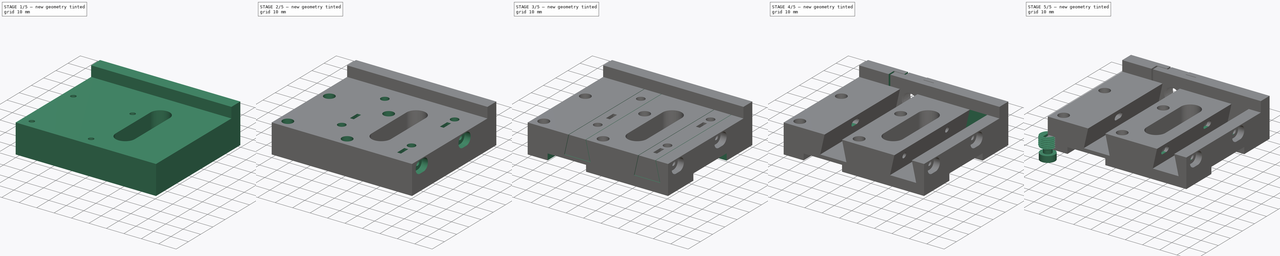
[diagram: build sequence overview — one tinted view per stage of 5, left to right]
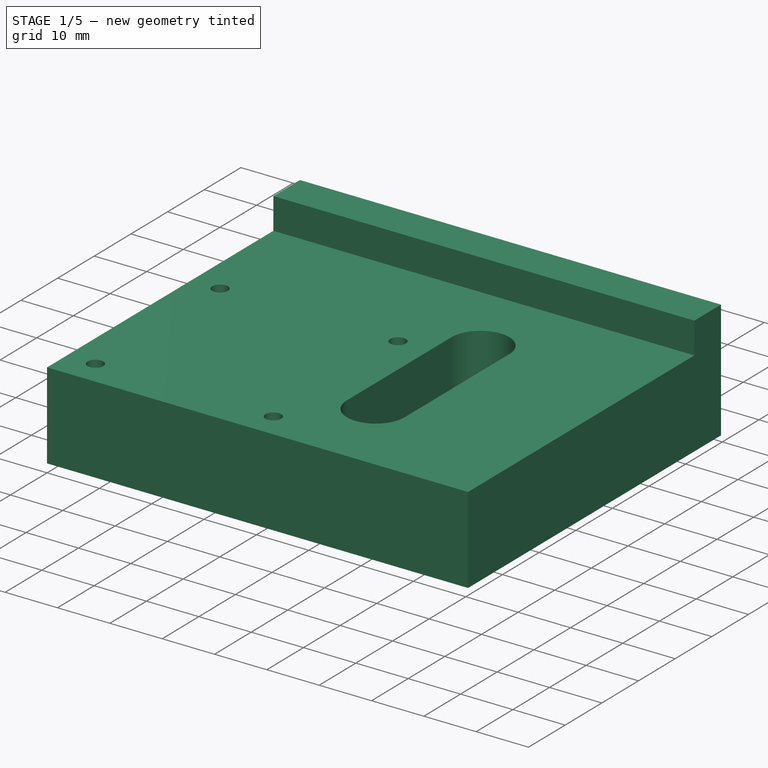
[diagram: stage 1 of 5 — iso view after this stage's code; geometry added in this stage tinted green]
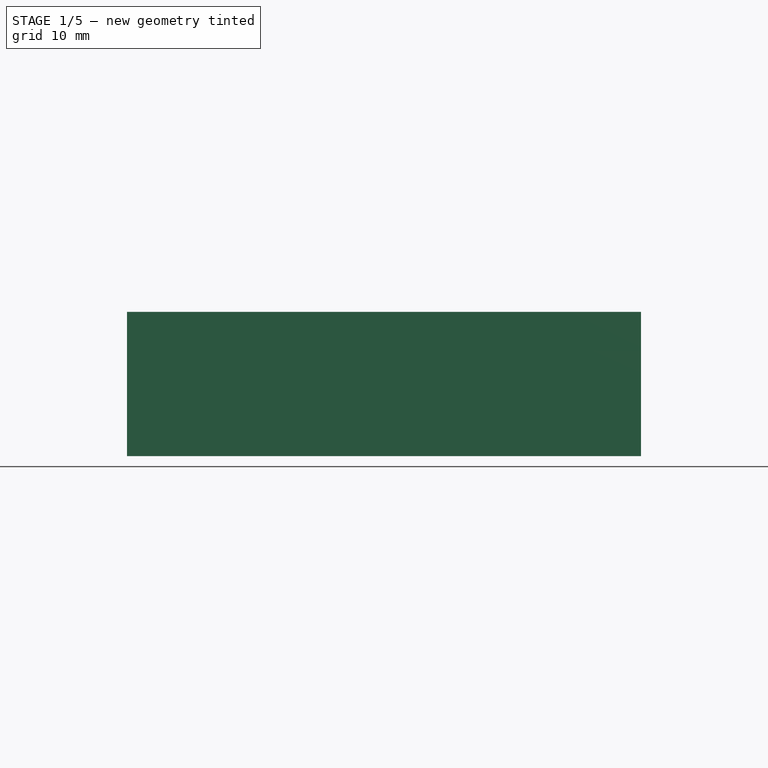
[diagram: stage 1 of 5 — front view after this stage's code; geometry added in this stage tinted green]
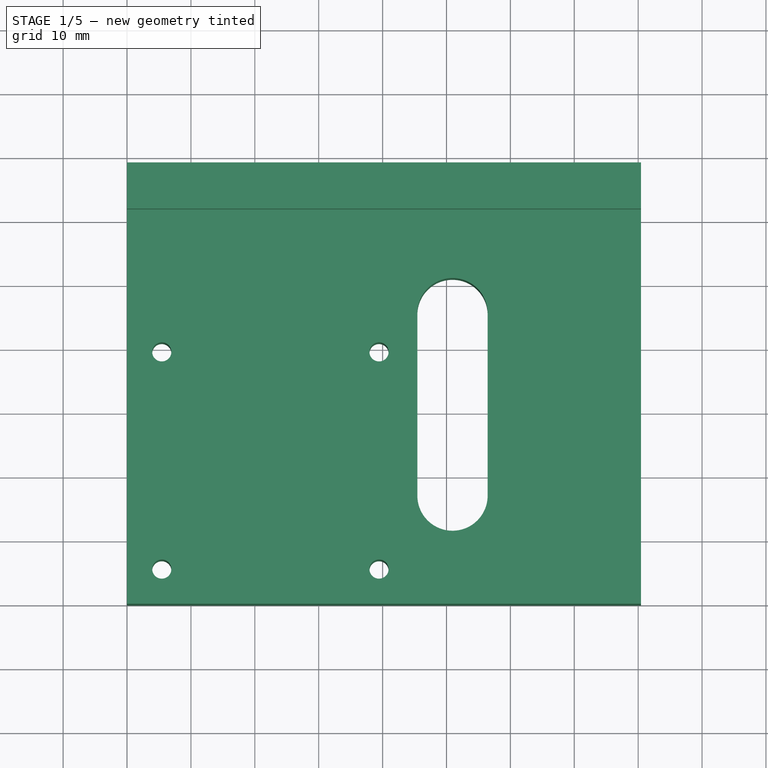
[diagram: stage 1 of 5 — top view after this stage's code; geometry added in this stage tinted green]
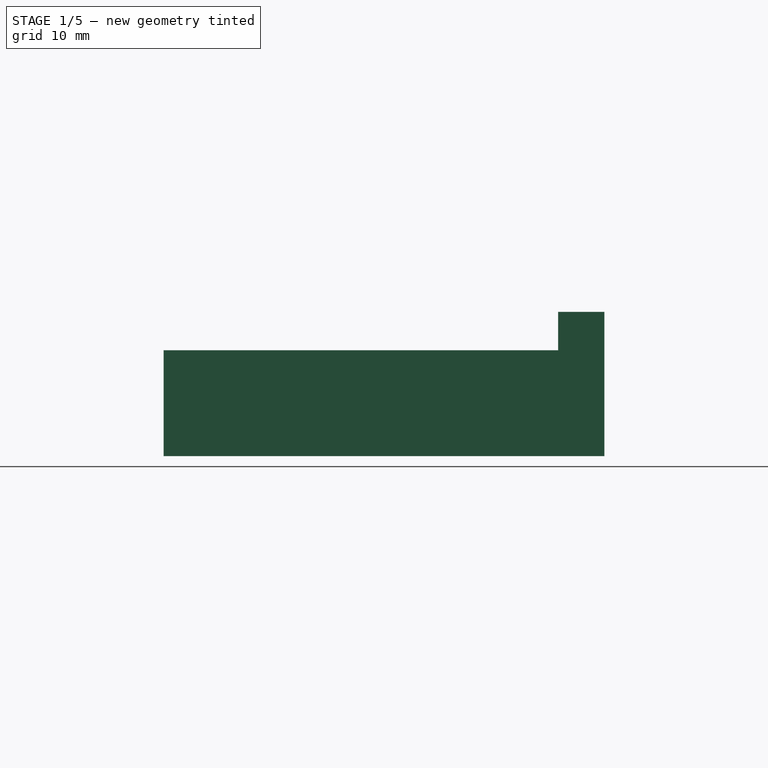
[diagram: stage 1 of 5 — right view after this stage's code; geometry added in this stage tinted green]
FCSTD DOCUMENT  (FreeCAD 2022.111R28429 (Git))
Label: E2_Adjustable_Plate_v2
License: All rights reserved
LicenseURL: http://en.wikipedia.org/wiki/All_rights_reserved
objects: Sketcher::SketchObject×24, PartDesign::Pocket×18, PartDesign::Pad×6, PartDesign::Body×6, Sketcher::SketchExport×6, PartDesign::SubShapeBinder×5, PartDesign::Solid×3, Part::Part2DObjectPython×2, Part::Helix×2, Part::Sweep×2, PartDesign::Hole×2, PartDesign::FeatureBase×1, PartDesign::Groove×1, Part::Cut×1, PartDesign::Plane×1, PartDesign::Split×1
note: 137 computed .brp shape members not serialized (recipe doc carries the construction recipe); baked Part::Feature solids carry a one-line shape summary decoded from their .brp

FEATURE [PartDesign::Body] Body  label="E2_Adjustable_Plate"
  AutoGroupSolids = false
  BaseFeature = -> BaseFeature
  ExportMode = 0
  Group = -> [BaseFeature,Sketch033,Pocket025,Sketch034,Pocket026]
  Origin = -> Origin
  Tip = -> Pocket026
  TreeRank = 228
  _ExportChildren = -> [BaseFeature,Pocket025,Pocket026]
  _GroupVersion = 1
FEATURE [Part::Part2DObjectPython] VThreadProfile  # Draft 2D object (typed FeaturePython)
  Area = 66.6085
  Closed = true
  Continuity = C3
  Instructions = Expand this with the ... button to view instructions | Sweep this object along a helix of the same pitch to produce your thread. | It is recommended to make the helix in the ThreadProfile workbench. | If there is an active Body the ThreadProfile object will be put into it.,If not it can be dragged and dropped into the body later. | If there is an active Body when the helix is made there will be made a ShapeBinder for it | For internal threads you will need to cut the Sweep object out of a cylinder, or if using Part Design sweep it as a Subtractive Pipe. | Always use Frenet mode | I have provided some presets, but it is possible there could be some errors.  Double check for mission critical applications. | Also, the tolerances might be different from what you wish to have.  I believe the internal minor diameters are all minimum and the external are all maximum.
  InternalOrExternal = 1
  MakeFace = true
  MinorDiameter = 8.75
  Parameterization = 1
  Pitch = 1
  Points = (719) [(4.37248,0.0382111,0),(4.36972,0.0763799,0),(4.36672,0.114506,0),(4.36347,0.152588,0),(4.35996,0.190625,0),(4.35619,0.228616,0),(4.35215,0.26656,0),+712 more]
  Presets = 0
  Quality = 1
  ThreadCount = 10
  TreeRank = 260
  Version = 1.69
  external_data = [-0.00235387,-0.00461052,-0.00677828,-0.00886428,-0.0108747,-0.0128149,-0.0146895,-0.0165028,-0.0182584,-0.0199597,-0.0216095,-0.0232106,-0.0247653,-0.0262759,-0.0277444,-0.0291725,-0.0305621,-0.0319145,-0.0332313,-0.0345138,-0.0357632,+698 more]
  internal_data = [0,0,0,0,0,0,0,0,0,0,0,0,0,0,0,0,0,0,0,0,0,0,0,0,0,0,0,0,0,0,0,0,0,0,0,0,0,0,0,0,0,0,0,0,0,0,0,0,0,0,0,0,0,0,0,0,0,0,0,0,0,0,0,0,0,0,0,0,0,0,0,0,0,0,0,0,0,0,0,0,0,0,0,0,0,0,0,0,0,0,0,0,0,0,0,0,0,0,0,0,0,0,0,0,0,0,0,0,0,0,0,0,0,0,0,0,0,0,0,0,+599 more]
  preset_names = <blob: 3959 chars omitted>
  presets_data = [0,0,0,2.20878,24.1173,24.6888,0.25,0.693,0.729,0.25,0.793,0.829,0.25,0.893,0.929,0.3,1.032,1.075,0.35,1.171,1.221,0.35,1.371,1.421,0.4,1.509,1.567,0.45,1.648,1.713,0.45,1.948,2.013,0.5,2.387,2.459,0.6,2.764,2.85,0.7,3.141,3.242,0.75,3.58,+712 more]
FEATURE [Part::Helix] Helix
  Angle = 0
  AttacherType = Attacher::AttachEngine3D
  Height = 10
  LocalCoord = 0
  Pitch = 1
  Radius = 1
  Style = 0
  TreeRank = 261
  expr: Placement.Base.x = VThreadProfile.Placement.Base.x
  expr: Placement.Base.y = VThreadProfile.Placement.Base.y
  expr: Placement.Base.z = VThreadProfile.Placement.Base.z
  expr: Placement.Rotation.Angle = VThreadProfile.Placement.Rotation.Angle
  expr: Placement.Rotation.Axis.x = VThreadProfile.Placement.Rotation.Axis.x
  expr: Placement.Rotation.Axis.y = VThreadProfile.Placement.Rotation.Axis.y
  expr: Placement.Rotation.Axis.z = VThreadProfile.Placement.Rotation.Axis.z
  expr: Height = VThreadProfile.ThreadCount * VThreadProfile.Pitch
  expr: Pitch = VThreadProfile.Pitch
FEATURE [Part::Sweep] Sweep
  Frenet = true
  Placement = pos=(0,0,-0.5) rot=(0,0,1;0rad)
  Sections = -> [VThreadProfile]
  Solid = true
  Spine = -> Helix [Edge1,Edge2,Edge3,Edge4,Edge5,Edge6,Edge7,Edge8,Edge9,Edge10]
  Transition = 1
  TreeRank = 262
FEATURE [Sketcher::SketchObject] Sketch035
  FullyConstrained = true
  MapMode = 5
  Support = -> [XY_Plane007]
  TreeRank = 275
  sketch-geometry (4):
    g0: LineSegment StartX=-11.3 StartY=11.4 StartZ=0 EndX=11.3 EndY=11.4 EndZ=0
    g1: LineSegment StartX=11.3 StartY=11.4 StartZ=0 EndX=11.3 EndY=-5.5 EndZ=0
    g2: LineSegment StartX=11.3 StartY=-5.5 StartZ=0 EndX=-11.3 EndY=-5.5 EndZ=0
    g3: LineSegment StartX=-11.3 StartY=-5.5 StartZ=0 EndX=-11.3 EndY=11.4 EndZ=0
  constraints (11):
    c: Coincident(g0,g1)
    c: Coincident(g1,g2)
    c: Coincident(g2,g3)
    c: Coincident(g3,g0)
    c: Horizontal(g0)
    c: Vertical(g1)
    c: Vertical(g3)
    c: DistanceY(g1,g-1) = 5.5
    c: DistanceY(g1,g1) = 16.9
    c: DistanceX(g2,g2) = 22.6
    c: Symmetric(g1,g2,g-2)
FEATURE [PartDesign::Pad] Pad005
  ClaimChildren = false
  Direction = (1,1,1)
  Fit = 0
  FitJoin = 0
  InnerFit = 0
  InnerFitJoin = 0
  InnerTaperAngle = 0
  InnerTaperAngleRev = 0
  Length = 4
  Length2 = 100
  Linearize = true
  NewSolid = false
  Profile = -> Sketch035
  Refine = true
  Suppress = false
  TreeRank = 276
  Type = 0
  _ProfileBasedVersion = 1
FEATURE [Sketcher::SketchObject] Sketch036
  ExternalGeometry = -> [Pad005]
  FullyConstrained = true
  MapMode = 5
  Placement = pos=(0,0,4) rot=(0,0,1;0rad)
  Support = -> [Pad005]
  TreeRank = 277
  sketch-geometry (4):
    g0: LineSegment StartX=-5.4 StartY=11.4 StartZ=0 EndX=5.4 EndY=11.4 EndZ=0
    g1: LineSegment StartX=5.4 StartY=11.4 StartZ=0 EndX=5.4 EndY=-5.5 EndZ=0
    g2: LineSegment StartX=5.4 StartY=-5.5 StartZ=0 EndX=-5.4 EndY=-5.5 EndZ=0
    g3: LineSegment StartX=-5.4 StartY=-5.5 StartZ=0 EndX=-5.4 EndY=11.4 EndZ=0
  constraints (11):
    c: Coincident(g0,g1)
    c: Coincident(g1,g2)
    c: Coincident(g2,g3)
    c: Coincident(g3,g0)
    c: Horizontal(g2)
    c: Vertical(g1)
    c: Vertical(g3)
    c: PointOnObject(g0,g-3)
    c: PointOnObject(g1,g-4)
    c: Symmetric(g0,g0,g-2)
    c: DistanceX(g0,g0) = 10.8
FEATURE [PartDesign::Pad] Pad006
  BaseFeature = -> Pad005
  ClaimChildren = false
  Direction = (1,1,1)
  Fit = 0
  FitJoin = 0
  InnerFit = 0
  InnerFitJoin = 0
  InnerTaperAngle = 0
  InnerTaperAngleRev = 0
  Length = 3
  Length2 = 100
  Linearize = true
  NewSolid = false
  Profile = -> Sketch036
  Refine = true
  Suppress = false
  TreeRank = 278
  Type = 0
  _ProfileBasedVersion = 1
FEATURE [PartDesign::Body] Body007
  AutoGroupSolids = false
  ExportMode = 0
  Group = -> [Sketch035,Pad005,Sketch036,Pad006]
  Origin = -> Origin007
  Tip = -> Pad006
  TreeRank = 274
  _ExportChildren = -> [Pad005,Pad006]
  _GroupVersion = 1
FEATURE [Part::Cut] Cut  label="E2_Nut_Insert"
  Base = -> Body007
  Placement = pos=(29,62,11) rot=(0,0.707107,0.707107;3.14159rad)
  Refine = true
  Tool = -> Sweep
  TreeRank = 279
FEATURE [PartDesign::Body] Body001  label="Base plate"
  AutoGroupSolids = false
  ExportMode = 0
  Group = -> [Sketch004,Pad002,Binder,Sketch005,Pad003,Sketch009,Pocket007,Sketch011,Pocket,Pocket009,Hole,Export,Sketch013,Pocket010,Pocket011,Pocket012,Hole001,Sketch016,Sketch017,Export001,Export002,Export003,Export004,Sketch,Export005,Sketch018,Pocket013,Pocket014,Pocket015,Sketch019,Pocket016,DatumPlane,Sketch020,Pocket017,Sketch022,Pocket018,Sketch023,Pocket019,Sketch024,Binder001,Sketch031,Pocket023,+6 more]
  Origin = -> Origin001
  Tip = -> Split
  TreeRank = 46
  _ExportChildren = -> [Pad002,Binder,Pad003,Pocket007,Pocket,Pocket009,Hole,Pocket010,Pocket011,Pocket012,Hole001,Pocket013,Pocket014,Pocket015,Pocket016,DatumPlane,Pocket017,Pocket018,Pocket019,Sketch024,Pocket023,Pocket024,Split]
  _GroupVersion = 1
FEATURE [Sketcher::SketchObject] Sketch004
  Exports = -> [Export]
  FullyConstrained = true
  MapMode = 5
  Support = -> [XY_Plane001]
  TreeRank = 0
  sketch-geometry (40):
    g0: LineSegment StartX=0 StartY=0 StartZ=0 EndX=80.44 EndY=0 EndZ=0
    g1: LineSegment StartX=80.44 StartY=0 StartZ=0 EndX=80.44 EndY=69 EndZ=0
    g2: LineSegment StartX=80.44 StartY=69 StartZ=0 EndX=0 EndY=69 EndZ=0
    g3: LineSegment StartX=0 StartY=69 StartZ=0 EndX=0 EndY=0 EndZ=0
    g4: Circle CenterX=5.44 CenterY=5.44 CenterZ=0 NormalX=0 NormalY=0 NormalZ=1 AngleXU=0 Radius=1.5
    g5: Circle CenterX=39.44 CenterY=5.44 CenterZ=0 NormalX=0 NormalY=0 NormalZ=1 AngleXU=0 Radius=1.5
    g6: Circle CenterX=5.44 CenterY=39.44 CenterZ=0 NormalX=0 NormalY=0 NormalZ=1 AngleXU=0 Radius=1.5
    g7: Circle CenterX=39.44 CenterY=39.44 CenterZ=0 NormalX=0 NormalY=0 NormalZ=1 AngleXU=0 Radius=1.5
    g8: LineSegment [constr] StartX=5.44 StartY=39.44 StartZ=0 EndX=39.44 EndY=39.44 EndZ=0
    g9: LineSegment [constr] StartX=39.44 StartY=39.44 StartZ=0 EndX=39.44 EndY=5.44 EndZ=0
    g10: LineSegment [constr] StartX=39.44 StartY=5.44 StartZ=0 EndX=5.44 EndY=5.44 EndZ=0
    g11: LineSegment [constr] StartX=5.44 StartY=5.44 StartZ=0 EndX=5.44 EndY=39.44 EndZ=0
    g12: Circle [constr] CenterX=28.44 CenterY=52 CenterZ=0 NormalX=0 NormalY=0 NormalZ=1 AngleXU=0 Radius=1.5
    g13: Circle [constr] CenterX=28.44 CenterY=16.75 CenterZ=0 NormalX=0 NormalY=0 NormalZ=1 AngleXU=0 Radius=1.5
    g14: Circle [constr] CenterX=68.44 CenterY=52 CenterZ=0 NormalX=0 NormalY=0 NormalZ=1 AngleXU=0 Radius=1.5
    g15: Circle [constr] CenterX=68.44 CenterY=16.75 CenterZ=0 NormalX=0 NormalY=0 NormalZ=1 AngleXU=0 Radius=1.5
    g16: LineSegment [constr] StartX=28.44 StartY=52 StartZ=0 EndX=68.44 EndY=52 EndZ=0
    g17: LineSegment [constr] StartX=68.44 StartY=52 StartZ=0 EndX=68.44 EndY=16.75 EndZ=0
    g18: LineSegment [constr] StartX=68.44 StartY=16.75 StartZ=0 EndX=28.44 EndY=16.75 EndZ=0
    g19: LineSegment [constr] StartX=28.44 StartY=16.75 StartZ=0 EndX=28.44 EndY=52 EndZ=0
    g20: LineSegment [constr] StartX=22.44 StartY=0 StartZ=0 EndX=34.44 EndY=0 EndZ=0
    g21: LineSegment [constr] StartX=34.44 StartY=0 StartZ=0 EndX=34.44 EndY=57 EndZ=0
    g22: LineSegment [constr] StartX=34.44 StartY=57 StartZ=0 EndX=22.44 EndY=57 EndZ=0
    g23: LineSegment [constr] StartX=22.44 StartY=57 StartZ=0 EndX=22.44 EndY=0 EndZ=0
    g24: LineSegment [constr] StartX=62.44 StartY=0 StartZ=0 EndX=74.44 EndY=0 EndZ=0
    g25: LineSegment [constr] StartX=74.44 StartY=0 StartZ=0 EndX=74.44 EndY=57 EndZ=0
    g26: LineSegment [constr] StartX=74.44 StartY=57 StartZ=0 EndX=62.44 EndY=57 EndZ=0
    g27: LineSegment [constr] StartX=62.44 StartY=57 StartZ=0 EndX=62.44 EndY=0 EndZ=0
    g28: LineSegment [constr] StartX=28.44 StartY=52 StartZ=0 EndX=28.44 EndY=57 EndZ=0
    g29: LineSegment [constr] StartX=68.44 StartY=52 StartZ=0 EndX=68.44 EndY=57 EndZ=0
    g30: ArcOfCircle CenterX=50.94 CenterY=45.5 CenterZ=0 NormalX=0 NormalY=0 NormalZ=1 AngleXU=0 Radius=5.5 StartAngle=5e-16 EndAngle=3.14159
    g31: ArcOfCircle CenterX=50.94 CenterY=16.94 CenterZ=0 NormalX=0 NormalY=0 NormalZ=1 AngleXU=0 Radius=5.5 StartAngle=3.14159 EndAngle=6.28319
    g32: LineSegment StartX=45.44 StartY=45.5 StartZ=0 EndX=45.44 EndY=16.94 EndZ=0
    g33: LineSegment StartX=56.44 StartY=45.5 StartZ=0 EndX=56.44 EndY=16.94 EndZ=0
    g34: LineSegment [constr] StartX=45.44 StartY=16.94 StartZ=0 EndX=39.44 EndY=16.94 EndZ=0
    g35: LineSegment [constr] StartX=56.44 StartY=16.94 StartZ=0 EndX=62.44 EndY=16.94 EndZ=0
    g36: LineSegment [constr] StartX=34.44 StartY=57 StartZ=0 EndX=62.44 EndY=57 EndZ=0
    g37: LineSegment [constr] StartX=50.94 StartY=57 StartZ=0 EndX=50.94 EndY=51 EndZ=0
    g38: LineSegment [constr] StartX=39.44 StartY=5.44 StartZ=0 EndX=62.44 EndY=5.44 EndZ=0
    g39: LineSegment [constr] StartX=50.94 StartY=5.44 StartZ=0 EndX=50.94 EndY=11.44 EndZ=0
  constraints (108):
    c: Coincident(g0,g1)
    c: Coincident(g1,g2)
    c: Coincident(g2,g3)
    c: Coincident(g3,g0)
    c: Horizontal(g0)
    c: Horizontal(g2)
    c: Vertical(g1)
    c: Vertical(g3)
    c: Coincident(g0,g-1)
    c: DistanceY(g3,g3) = 69
    c: Coincident(g8,g9)
    c: Coincident(g9,g10)
    c: Coincident(g10,g11)
    c: Coincident(g11,g8)
    c: Horizontal(g8)
    c: Horizontal(g10)
    c: Vertical(g9)
    c: Vertical(g11)
    c: Coincident(g8,g6)
    c: Coincident(g9,g5)
    c: Coincident(g7,g8)
    c: Coincident(g4,g10)
    c: Equal(g10,g11)
    c: DistanceY(g11,g11) = 34
    c: DistanceX(g0,g4) = 5.44
    c: DistanceY(g0,g4) = 5.44
    c: Diameter(g4) = 3
    c: Equal(g4,g5)
    c: Equal(g4,g7)
    c: Equal(g4,g6)
    c: Coincident(g16,g17)
    c: Coincident(g17,g18)
    c: Coincident(g18,g19)
    c: Coincident(g19,g16)
    c: Horizontal(g16)
    c: Horizontal(g18)
    c: Vertical(g17)
    c: Vertical(g19)
    c: Coincident(g16,g12)
    c: Coincident(g17,g15)
    c: Coincident(g13,g18)
    c: Coincident(g14,g16)
    c: DistanceX(g16,g16) = 40
    c: DistanceY(g17,g17) = 35.25
    c: Diameter(g13) = 3
    c: Equal(g13,g15)
    c: Equal(g13,g14)
    c: Equal(g13,g12)
    c: DistanceY(g0,g13) = 16.75
    c: DistanceX(g4,g13) = 23
    c: DistanceX(g15,g0) = 12
    c: Coincident(g20,g21)
    c: Coincident(g21,g22)
    c: Coincident(g22,g23)
    c: Coincident(g23,g20)
    c: Horizontal(g20)
    c: Horizontal(g22)
    c: Vertical(g21)
    c: Vertical(g23)
    c: PointOnObject(g20,g0)
    c: Coincident(g24,g25)
    c: Coincident(g25,g26)
    c: Coincident(g26,g27)
    c: Coincident(g27,g24)
    c: Horizontal(g24)
    c: Horizontal(g26)
    c: Vertical(g25)
    c: Vertical(g27)
    c: PointOnObject(g24,g0)
    c: Equal(g22,g26)
    c: DistanceX(g26,g26) = 12
    c: DistanceY(g25,g25) = 57
    c: Horizontal(g26,g21)
    c: Coincident(g28,g12)
    c: Vertical(g28)
    c: Coincident(g29,g14)
    c: Vertical(g29)
    c: Symmetric(g26,g25,g29)
    c: Symmetric(g22,g21,g28)
    c: Tangent(g30,g33) = 1.5708
    c: Tangent(g30,g32) = -1.5708
    c: Tangent(g32,g31) = -1.5708
    c: Tangent(g33,g31) = 1.5708
    c: Vertical(g32)
    c: Coincident(g34,g31)
    c: PointOnObject(g34,g9)
    c: Coincident(g35,g31)
    c: PointOnObject(g35,g27)
    c: Horizontal(g35)
    c: Horizontal(g34)
    c: Equal(g34,g35)
    c: DistanceX(g35,g35) = 6
    c: Vertical(g33)
    c: Coincident(g36,g21)
    c: Coincident(g36,g26)
    c: PointOnObject(g37,g36)
    c: PointOnObject(g37,g30)
    c: Vertical(g37)
    c: Vertical(g37,g30)
    c: Equal(g37,g35)
    c: Coincident(g38,g5)
    c: PointOnObject(g38,g27)
    c: Horizontal(g38)
    c: PointOnObject(g39,g38)
    c: PointOnObject(g39,g31)
    c: Vertical(g39)
    c: Vertical(g39,g31)
    c: Equal(g34,g39)
FEATURE [PartDesign::Pad] Pad002
  ClaimChildren = false
  Direction = (1,1,1)
  Fit = 0
  FitJoin = 0
  InnerFit = 0
  InnerFitJoin = 0
  InnerTaperAngle = 0
  InnerTaperAngleRev = 0
  Length = 16.58
  Length2 = 100
  Linearize = true
  NewSolid = false
  Profile = -> Sketch004
  Refine = true
  Suppress = false
  TreeRank = 0
  Type = 0
  _ProfileBasedVersion = 1
FEATURE [Sketcher::SketchObject] Sketch005
  ExternalGeometry = -> [Pad002]
  FullyConstrained = true
  MapMode = 5
  Placement = pos=(0,0,16.58) rot=(0,0,1;0rad)
  Support = -> [Binder]
  TreeRank = 0
  sketch-geometry (4):
    g0: LineSegment StartX=0 StartY=69 StartZ=0 EndX=80.44 EndY=69 EndZ=0
    g1: LineSegment StartX=80.44 StartY=69 StartZ=0 EndX=80.44 EndY=61.75 EndZ=0
    g2: LineSegment StartX=80.44 StartY=61.75 StartZ=0 EndX=0 EndY=61.75 EndZ=0
    g3: LineSegment StartX=0 StartY=61.75 StartZ=0 EndX=0 EndY=69 EndZ=0
  constraints (10):
    c: Coincident(g0,g1)
    c: Coincident(g1,g2)
    c: Coincident(g2,g3)
    c: Coincident(g3,g0)
    c: Horizontal(g2)
    c: Vertical(g1)
    c: Vertical(g3)
    c: Coincident(g0,g-3)
    c: Coincident(g0,g-3)
    c: DistanceY(g1,g1) = 7.25
FEATURE [PartDesign::Pad] Pad003
  BaseFeature = -> Pad002
  ClaimChildren = false
  Direction = (1,1,1)
  Fit = 0
  FitJoin = 0
  InnerFit = 0
  InnerFitJoin = 0
  InnerTaperAngle = 0
  InnerTaperAngleRev = 0
  Length = 6
  Length2 = 100
  Linearize = true
  NewSolid = false
  Profile = -> Sketch005
  Refine = true
  Suppress = false
  TreeRank = 0
  Type = 0
  _ProfileBasedVersion = 1
FEATURE [Sketcher::SketchObject] Sketch009
  Exports = -> [Export001,Export002]
  FullyConstrained = true
  MapMode = 5
  Placement = pos=(0,0,0) rot=(0.57735,-0.57735,-0.57735;2.0944rad)
  TreeRank = 0
  sketch-geometry (9):
    g0: ArcOfCircle [constr] CenterX=-28 CenterY=12.58 CenterZ=0 NormalX=0 NormalY=0 NormalZ=1 AngleXU=0 Radius=1.5 StartAngle=1.5708 EndAngle=4.71239
    g1: ArcOfCircle [constr] CenterX=-25 CenterY=12.58 CenterZ=0 NormalX=0 NormalY=0 NormalZ=1 AngleXU=0 Radius=1.5 StartAngle=4.71239 EndAngle=7.85398
    g2: LineSegment [constr] StartX=-28 StartY=11.08 StartZ=0 EndX=-25 EndY=11.08 EndZ=0
    g3: LineSegment [constr] StartX=-28 StartY=14.08 StartZ=0 EndX=-25 EndY=14.08 EndZ=0
    g4: ArcOfCircle CenterX=-28 CenterY=12.58 CenterZ=0 NormalX=0 NormalY=0 NormalZ=1 AngleXU=0 Radius=3.5 StartAngle=1.5708 EndAngle=4.71239
    g5: ArcOfCircle CenterX=-25 CenterY=12.58 CenterZ=0 NormalX=0 NormalY=0 NormalZ=1 AngleXU=0 Radius=3.5 StartAngle=4.71239 EndAngle=7.85398
    g6: LineSegment StartX=-28 StartY=9.08 StartZ=0 EndX=-25 EndY=9.08 EndZ=0
    g7: LineSegment StartX=-28 StartY=16.08 StartZ=0 EndX=-25 EndY=16.08 EndZ=0
    g8: Circle [constr] CenterX=-28 CenterY=12.58 CenterZ=0 NormalX=0 NormalY=0 NormalZ=1 AngleXU=0 Radius=1.5
  constraints (20):
    c: Tangent(g0,g3) = 1.5708
    c: Tangent(g0,g2) = -1.5708
    c: Tangent(g2,g1) = -1.5708
    c: Tangent(g3,g1) = 1.5708
    c: Horizontal(g2)
    c: Equal(g0,g1)
    c: Tangent(g4,g7) = 1.5708
    c: Tangent(g4,g6) = -1.5708
    c: Tangent(g6,g5) = -1.5708
    c: Tangent(g7,g5) = 1.5708
    c: Horizontal(g6)
    c: Coincident(g4,g0)
    c: Coincident(g1,g5)
    c: Diameter(g1) = 3
    c: Diameter(g5) = 7
    c: DistanceX(g0,g1) = 3
    c: DistanceX(g1,g-1) = 25
    c: DistanceY(g-1,g1) = 12.58
    c: Coincident(g8,g0)
    c: Equal(g8,g0)
FEATURE [PartDesign::Pocket] Pocket007
  BaseFeature = -> Pad003
  ClaimChildren = false
  Fit = 0
  FitJoin = 0
  InnerFit = 0
  InnerFitJoin = 0
  InnerTaperAngle = 0
  InnerTaperAngleRev = 0
  Length = 13
  Length2 = 100
  Linearize = true
  NewSolid = false
  Profile = -> Sketch009
  Refine = true
  Suppress = false
  TreeRank = 0
  Type = 0
  _ProfileBasedVersion = 1
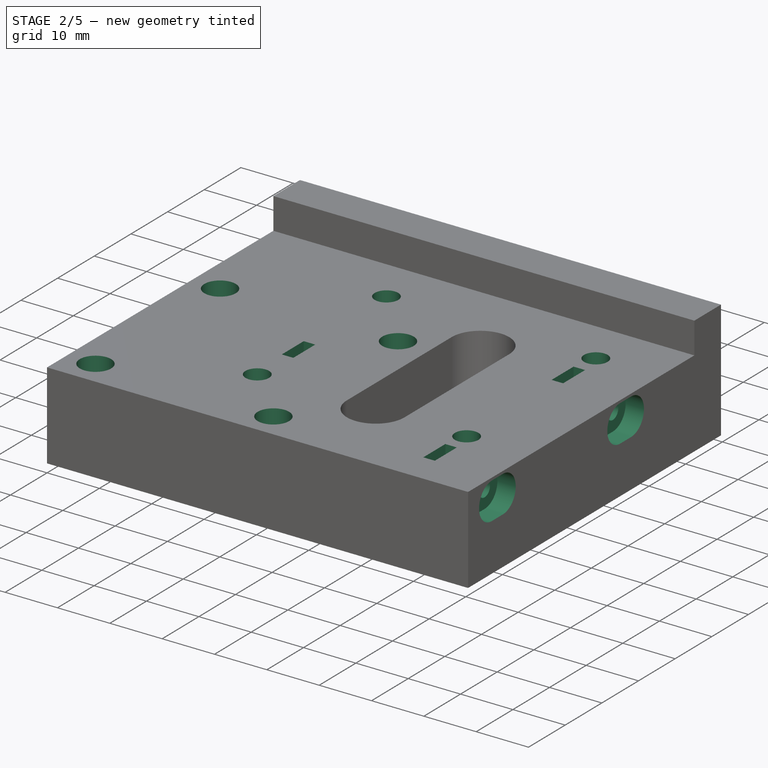
[diagram: stage 2 of 5 — iso view after this stage's code; geometry added in this stage tinted green]
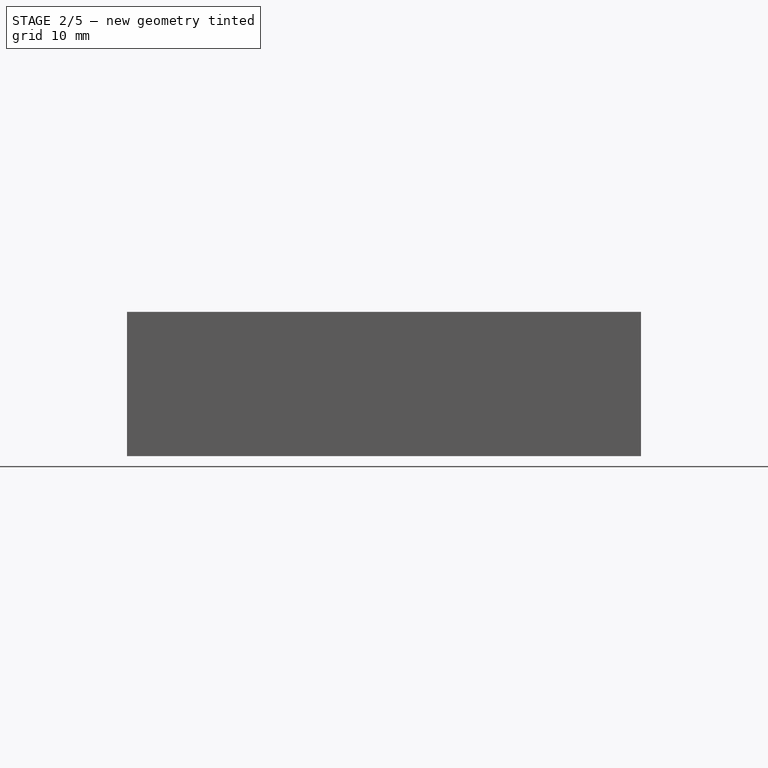
[diagram: stage 2 of 5 — front view after this stage's code; geometry added in this stage tinted green]
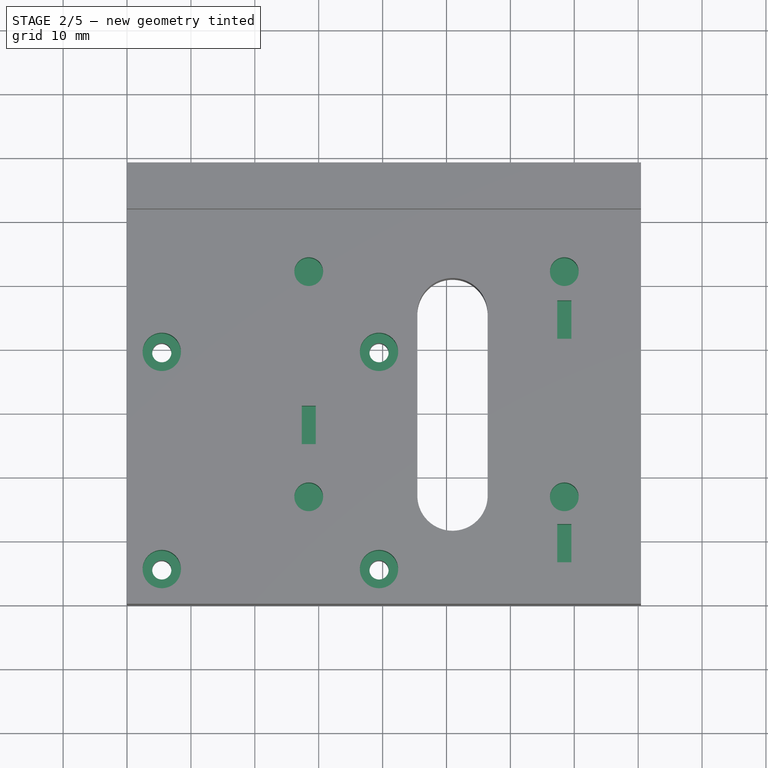
[diagram: stage 2 of 5 — top view after this stage's code; geometry added in this stage tinted green]
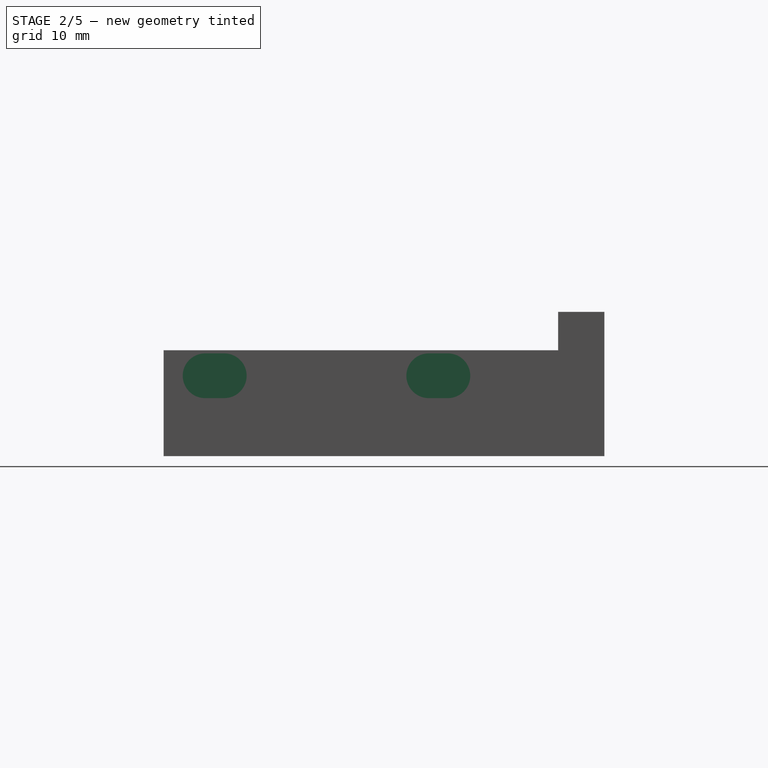
[diagram: stage 2 of 5 — right view after this stage's code; geometry added in this stage tinted green]
FEATURE [Sketcher::SketchObject] Sketch011
  Exports = -> [Export003,Export004]
  FullyConstrained = true
  MapMode = 5
  Placement = pos=(80.44,0,0) rot=(0.57735,0.57735,0.57735;2.0944rad)
  Support = -> [Pocket007]
  TreeRank = 0
  sketch-geometry (18):
    g0: ArcOfCircle [constr] CenterX=6.5 CenterY=12.58 CenterZ=0 NormalX=0 NormalY=0 NormalZ=1 AngleXU=0 Radius=1.5 StartAngle=1.5708 EndAngle=4.71239
    g1: ArcOfCircle [constr] CenterX=9.5 CenterY=12.58 CenterZ=0 NormalX=0 NormalY=0 NormalZ=1 AngleXU=0 Radius=1.5 StartAngle=4.71239 EndAngle=7.85398
    g2: LineSegment [constr] StartX=6.5 StartY=11.08 StartZ=0 EndX=9.5 EndY=11.08 EndZ=0
    g3: LineSegment [constr] StartX=6.5 StartY=14.08 StartZ=0 EndX=9.5 EndY=14.08 EndZ=0
    g4: ArcOfCircle CenterX=6.5 CenterY=12.58 CenterZ=0 NormalX=0 NormalY=0 NormalZ=1 AngleXU=0 Radius=3.5 StartAngle=1.5708 EndAngle=4.71239
    g5: ArcOfCircle CenterX=9.5 CenterY=12.58 CenterZ=0 NormalX=0 NormalY=0 NormalZ=1 AngleXU=0 Radius=3.5 StartAngle=4.71239 EndAngle=7.85398
    g6: LineSegment StartX=6.5 StartY=9.08 StartZ=0 EndX=9.5 EndY=9.08 EndZ=0
    g7: LineSegment StartX=6.5 StartY=16.08 StartZ=0 EndX=9.5 EndY=16.08 EndZ=0
    g8: ArcOfCircle [constr] CenterX=41.5 CenterY=12.58 CenterZ=0 NormalX=0 NormalY=0 NormalZ=1 AngleXU=0 Radius=1.5 StartAngle=1.5708 EndAngle=4.71239
    g9: ArcOfCircle [constr] CenterX=44.5 CenterY=12.58 CenterZ=0 NormalX=0 NormalY=0 NormalZ=1 AngleXU=0 Radius=1.5 StartAngle=4.71239 EndAngle=7.85398
    g10: LineSegment [constr] StartX=41.5 StartY=11.08 StartZ=0 EndX=44.5 EndY=11.08 EndZ=0
    g11: LineSegment [constr] StartX=41.5 StartY=14.08 StartZ=0 EndX=44.5 EndY=14.08 EndZ=0
    g12: ArcOfCircle CenterX=41.5 CenterY=12.58 CenterZ=0 NormalX=0 NormalY=0 NormalZ=1 AngleXU=0 Radius=3.5 StartAngle=1.5708 EndAngle=4.71239
    g13: ArcOfCircle CenterX=44.5 CenterY=12.58 CenterZ=0 NormalX=0 NormalY=0 NormalZ=1 AngleXU=0 Radius=3.5 StartAngle=4.71239 EndAngle=7.85398
    g14: LineSegment StartX=41.5 StartY=9.08 StartZ=0 EndX=44.5 EndY=9.08 EndZ=0
    g15: LineSegment StartX=41.5 StartY=16.08 StartZ=0 EndX=44.5 EndY=16.08 EndZ=0
    g16: Circle [constr] CenterX=9.5 CenterY=12.58 CenterZ=0 NormalX=0 NormalY=0 NormalZ=1 AngleXU=0 Radius=1.5
    g17: Circle [constr] CenterX=44.5 CenterY=12.58 CenterZ=0 NormalX=0 NormalY=0 NormalZ=1 AngleXU=0 Radius=1.5
  constraints (40):
    c: Tangent(g0,g3) = 1.5708
    c: Tangent(g0,g2) = -1.5708
    c: Tangent(g2,g1) = -1.5708
    c: Tangent(g3,g1) = 1.5708
    c: Horizontal(g2)
    c: Equal(g0,g1)
    c: Tangent(g4,g7) = 1.5708
    c: Tangent(g4,g6) = -1.5708
    c: Tangent(g6,g5) = -1.5708
    c: Tangent(g7,g5) = 1.5708
    c: Horizontal(g6)
    c: Coincident(g4,g0)
    c: Tangent(g8,g11) = 1.5708
    c: Tangent(g8,g10) = -1.5708
    c: Tangent(g10,g9) = -1.5708
    c: Tangent(g11,g9) = 1.5708
    c: Horizontal(g10)
    c: Equal(g8,g9)
    c: Tangent(g12,g15) = 1.5708
    c: Tangent(g12,g14) = -1.5708
    c: Tangent(g14,g13) = -1.5708
    c: Tangent(g15,g13) = 1.5708
    c: Horizontal(g14)
    c: Coincident(g12,g8)
    c: Coincident(g9,g13)
    c: Coincident(g1,g5)
    c: Horizontal(g1,g8)
    c: Diameter(g1) = 3
    c: Equal(g1,g8)
    c: Diameter(g5) = 7
    c: Equal(g5,g12)
    c: DistanceX(g8,g9) = 3
    c: DistanceX(g0,g1) = 3
    c: DistanceX(g-1,g0) = 6.5
    c: DistanceX(g-1,g8) = 41.5
    c: DistanceY(g-1,g0) = 12.58
    c: Coincident(g16,g5)
    c: Equal(g16,g1)
    c: Coincident(g17,g13)
    c: Equal(g17,g9)
FEATURE [PartDesign::Pocket] Pocket009
  BaseFeature = -> Pocket
  ClaimChildren = false
  Fit = 0
  FitJoin = 0
  InnerFit = 0
  InnerFitJoin = 0
  InnerTaperAngle = 0
  InnerTaperAngleRev = 0
  Length = 3.5
  Length2 = 100
  Linearize = true
  NewSolid = false
  Profile = -> Sketch011
  Refine = true
  Suppress = false
  TreeRank = 0
  Type = 0
  _ProfileBasedVersion = 1
FEATURE [PartDesign::Hole] Hole
  BaseFeature = -> Pocket009
  ClaimChildren = false
  CustomThreadClearance = 0
  Depth = 7.58
  DepthType = 0
  Diameter = 6
  DrillForDepth = false
  DrillPoint = 0
  DrillPointAngle = 118
  Fit = 0
  FitJoin = 0
  HoleCutCountersinkAngle = 90
  HoleCutCustomValues = false
  HoleCutDepth = 0
  HoleCutDiameter = 6.1
  HoleCutType = 0
  InnerFit = 0
  InnerFitJoin = 0
  ModelThread = false
  NewSolid = false
  Profile = -> Pocket009 [Edge39,Edge44,Vertex33,Edge37,Edge38]
  Refine = true
  Suppress = false
  Tapered = false
  TaperedAngle = 90
  ThreadClass = 0
  ThreadDepth = 7.58
  ThreadDepthType = 0
  ThreadDirection = 0
  ThreadFit = 0
  ThreadSize = 0
  ThreadType = 0
  Threaded = false
  TreeRank = 0
  UseCustomThreadClearance = false
  _ProfileBasedVersion = 1
FEATURE [Sketcher::SketchExport] Export  label="M4Holes"
  Base = -> Sketch004
  BaseRefs = -> Sketch004 [edge13,edge15,edge16,edge14]
  Refs = ;g13.edge13 | ;g15.edge15 | ;g16.edge16 | ;g14.edge14
  SyncPlacement = true
  TreeRank = 0
FEATURE [Sketcher::SketchObject] Sketch013
  ExternalGeometry = -> [Export]
  FullyConstrained = true
  MapMode = 5
  Placement = pos=(0,0,16.58) rot=(0,0,1;0rad)
  Support = -> [Hole]
  TreeRank = 0
  sketch-geometry (4):
    g0: Circle CenterX=68.44 CenterY=16.75 CenterZ=0 NormalX=0 NormalY=0 NormalZ=1 AngleXU=0 Radius=1.5
    g1: Circle CenterX=28.44 CenterY=16.75 CenterZ=0 NormalX=0 NormalY=0 NormalZ=1 AngleXU=0 Radius=1.5
    g2: Circle CenterX=68.44 CenterY=52 CenterZ=0 NormalX=0 NormalY=0 NormalZ=1 AngleXU=0 Radius=1.5
    g3: Circle CenterX=28.44 CenterY=52 CenterZ=0 NormalX=0 NormalY=0 NormalZ=1 AngleXU=0 Radius=1.5
  constraints (8):
    c: Coincident(g0,g-4)
    c: Coincident(g1,g-3)
    c: Coincident(g2,g-5)
    c: Equal(g2,g-5)
    c: Equal(g-4,g0)
    c: Equal(g-3,g1)
    c: Coincident(g3,g-6)
    c: Equal(g-6,g3)
FEATURE [PartDesign::Hole] Hole001
  BaseFeature = -> Pocket012
  ClaimChildren = false
  CustomThreadClearance = 0
  Depth = 8
  DepthType = 0
  Diameter = 4.5
  DrillForDepth = false
  DrillPoint = 0
  DrillPointAngle = 118
  Fit = 0
  FitJoin = 0
  HoleCutCountersinkAngle = 90
  HoleCutCustomValues = false
  HoleCutDepth = 0
  HoleCutDiameter = 6.1
  HoleCutType = 0
  InnerFit = 0
  InnerFitJoin = 0
  ModelThread = true
  NewSolid = false
  Profile = -> Sketch013
  Refine = true
  Suppress = false
  Tapered = false
  TaperedAngle = 90
  ThreadClass = 0
  ThreadDepth = 8
  ThreadDepthType = 0
  ThreadDirection = 0
  ThreadFit = 0
  ThreadSize = 11
  ThreadType = 1
  Threaded = false
  TreeRank = 0
  UseCustomThreadClearance = false
  _ProfileBasedVersion = 1
FEATURE [Sketcher::SketchObject] Sketch016
  AttachmentOffset = pos=(0,0,-12) rot=(0,0,1;0rad)
  ExternalGeometry = -> [Pocket010]
  FullyConstrained = false
  MapMode = 5
  Placement = pos=(68.44,0,0) rot=(0.57735,0.57735,0.57735;2.0944rad)
  Support = -> [Pocket010]
  TreeRank = 0
  expr: Constraints[52] = Sketch011.Constraints[27]
  expr: Constraints[54] = Sketch011.Constraints[29]
  expr: Constraints[56] = Sketch011.Constraints[31]
  expr: Constraints[57] = Sketch011.Constraints[32]
  expr: Constraints[58] = Sketch011.Constraints[33]
  expr: Constraints[59] = Sketch011.Constraints[34]
  expr: Constraints[60] = Sketch011.Constraints[35]
  sketch-geometry (28):
    g0: LineSegment StartX=6.5 StartY=16.58 StartZ=0 EndX=12.5 EndY=16.58 EndZ=0
    g1: LineSegment StartX=12.5 StartY=16.58 StartZ=0 EndX=12.5 EndY=9.58 EndZ=0
    g2: LineSegment StartX=12.5 StartY=9.58 StartZ=0 EndX=6.5 EndY=9.58 EndZ=0
    g3: LineSegment StartX=6.5 StartY=9.58 StartZ=0 EndX=6.5 EndY=16.58 EndZ=0
    g4: LineSegment StartX=41.5 StartY=16.58 StartZ=0 EndX=47.5 EndY=16.58 EndZ=0
    g5: LineSegment StartX=47.5 StartY=16.58 StartZ=0 EndX=47.5 EndY=9.58 EndZ=0
    g6: LineSegment StartX=47.5 StartY=9.58 StartZ=0 EndX=41.5 EndY=9.58 EndZ=0
    g7: LineSegment StartX=41.5 StartY=9.58 StartZ=0 EndX=41.5 EndY=16.58 EndZ=0
    g8: LineSegment [constr] StartX=44.5 StartY=9.58 StartZ=0 EndX=44.5 EndY=16.58 EndZ=0
    g9: LineSegment [constr] StartX=9.5 StartY=9.58 StartZ=0 EndX=9.5 EndY=16.58 EndZ=0
    g10: ArcOfCircle [constr] CenterX=6.5 CenterY=12.58 CenterZ=0 NormalX=0 NormalY=0 NormalZ=1 AngleXU=0 Radius=1.5 StartAngle=1.5708 EndAngle=4.71239
    g11: ArcOfCircle [constr] CenterX=9.5 CenterY=12.58 CenterZ=0 NormalX=0 NormalY=0 NormalZ=1 AngleXU=0 Radius=1.5 StartAngle=4.71239 EndAngle=7.85398
    g12: LineSegment [constr] StartX=6.5 StartY=11.08 StartZ=0 EndX=9.5 EndY=11.08 EndZ=0
    g13: LineSegment [constr] StartX=6.5 StartY=14.08 StartZ=0 EndX=9.5 EndY=14.08 EndZ=0
    g14: ArcOfCircle [constr] CenterX=6.5 CenterY=12.58 CenterZ=0 NormalX=0 NormalY=0 NormalZ=1 AngleXU=0 Radius=3.5 StartAngle=1.5708 EndAngle=4.71239
    g15: ArcOfCircle [constr] CenterX=9.5 CenterY=12.58 CenterZ=0 NormalX=0 NormalY=0 NormalZ=1 AngleXU=0 Radius=3.5 StartAngle=4.71239 EndAngle=7.85398
    g16: LineSegment [constr] StartX=6.5 StartY=9.08 StartZ=0 EndX=9.5 EndY=9.08 EndZ=0
    g17: LineSegment [constr] StartX=6.5 StartY=16.08 StartZ=0 EndX=9.5 EndY=16.08 EndZ=0
    g18: ArcOfCircle [constr] CenterX=41.5 CenterY=12.58 CenterZ=0 NormalX=0 NormalY=0 NormalZ=1 AngleXU=0 Radius=1.5 StartAngle=1.5708 EndAngle=4.71239
    g19: ArcOfCircle [constr] CenterX=44.5 CenterY=12.58 CenterZ=0 NormalX=0 NormalY=0 NormalZ=1 AngleXU=0 Radius=1.5 StartAngle=4.71239 EndAngle=7.85398
    g20: LineSegment [constr] StartX=41.5 StartY=11.08 StartZ=0 EndX=44.5 EndY=11.08 EndZ=0
    g21: LineSegment [constr] StartX=41.5 StartY=14.08 StartZ=0 EndX=44.5 EndY=14.08 EndZ=0
    g22: ArcOfCircle [constr] CenterX=41.5 CenterY=12.58 CenterZ=0 NormalX=0 NormalY=0 NormalZ=1 AngleXU=0 Radius=3.5 StartAngle=1.5708 EndAngle=4.71239
    g23: ArcOfCircle [constr] CenterX=44.5 CenterY=12.58 CenterZ=0 NormalX=0 NormalY=0 NormalZ=1 AngleXU=0 Radius=3.5 StartAngle=4.71239 EndAngle=7.85398
    g24: LineSegment [constr] StartX=41.5 StartY=9.08 StartZ=0 EndX=44.5 EndY=9.08 EndZ=0
    g25: LineSegment [constr] StartX=41.5 StartY=16.08 StartZ=0 EndX=44.5 EndY=16.08 EndZ=0
    g26: Circle [constr] CenterX=9.5 CenterY=12.58 CenterZ=0 NormalX=0 NormalY=0 NormalZ=1 AngleXU=0 Radius=1.5
    g27: Circle [constr] CenterX=44.5 CenterY=12.58 CenterZ=0 NormalX=0 NormalY=0 NormalZ=1 AngleXU=0 Radius=1.5
  constraints (68):
    c: Coincident(g0,g1)
    c: Coincident(g1,g2)
    c: Coincident(g2,g3)
    c: Coincident(g3,g0)
    c: Horizontal(g0)
    c: Horizontal(g2)
    c: Vertical(g1)
    c: Vertical(g3)
    c: Coincident(g4,g5)
    c: Coincident(g5,g6)
    c: Coincident(g6,g7)
    c: Coincident(g7,g4)
    c: Horizontal(g4)
    c: Horizontal(g6)
    c: Vertical(g5)
    c: Vertical(g7)
    c: Vertical(g8)
    c: Vertical(g9)
    c: Symmetric(g2,g1,g9)
    c: Symmetric(g6,g5,g8)
    c: Equal(g2,g6)
    c: DistanceX(g2,g2) = 6
    c: Horizontal(g0,g4)
    c: Horizontal(g1,g6)
    c: PointOnObject(g4,g-3)
    c: Tangent(g10,g13) = 1.5708
    c: Tangent(g10,g12) = -1.5708
    c: Tangent(g12,g11) = -1.5708
    c: Tangent(g13,g11) = 1.5708
    c: Horizontal(g12)
    c: Equal(g10,g11)
    c: Tangent(g14,g17) = 1.5708
    c: Tangent(g14,g16) = -1.5708
    c: Tangent(g16,g15) = -1.5708
    c: Tangent(g17,g15) = 1.5708
    c: Horizontal(g16)
    c: Coincident(g14,g10)
    c: Tangent(g18,g21) = 1.5708
    c: Tangent(g18,g20) = -1.5708
    c: Tangent(g20,g19) = -1.5708
    c: Tangent(g21,g19) = 1.5708
    c: Horizontal(g20)
    c: Equal(g18,g19)
    c: Tangent(g22,g25) = 1.5708
    c: Tangent(g22,g24) = -1.5708
    c: Tangent(g24,g23) = -1.5708
    c: Tangent(g25,g23) = 1.5708
    c: Horizontal(g24)
    c: Coincident(g22,g18)
    c: Coincident(g19,g23)
    c: Coincident(g11,g15)
    c: Horizontal(g11,g18)
    c: Diameter(g11) = 3
    c: Equal(g11,g18)
    c: Diameter(g15) = 7
    c: Equal(g15,g22)
    c: DistanceX(g18,g19) = 3
    c: DistanceX(g10,g11) = 3
    c: DistanceX(g-1,g10) = 6.5
    c: DistanceX(g-1,g18) = 41.5
    c: DistanceY(g-1,g10) = 12.58
    c: Coincident(g26,g15)
    c: Equal(g26,g11)
    c: Coincident(g27,g23)
    c: Equal(g27,g19)
    c: PointOnObject(g19,g8)
    c: PointOnObject(g11,g9)
    c: DistanceY(g2,g11) = 3
FEATURE [Sketcher::SketchObject] Sketch017
  AttachmentOffset = pos=(0,0,-52) rot=(0,0,1;0rad)
  ExternalGeometry = -> [Export002,Pocket010]
  FullyConstrained = true
  MapMode = 5
  Placement = pos=(28.44,0,0) rot=(0.57735,0.57735,0.57735;2.0944rad)
  TreeRank = 0
  sketch-geometry (5):
    g0: LineSegment StartX=25 StartY=16.58 StartZ=0 EndX=31 EndY=16.58 EndZ=0
    g1: LineSegment StartX=31 StartY=16.58 StartZ=0 EndX=31 EndY=9.58 EndZ=0
    g2: LineSegment StartX=31 StartY=9.58 StartZ=0 EndX=25 EndY=9.58 EndZ=0
    g3: LineSegment StartX=25 StartY=9.58 StartZ=0 EndX=25 EndY=16.58 EndZ=0
    g4: LineSegment [constr] StartX=28 StartY=9.58 StartZ=0 EndX=28 EndY=12.58 EndZ=0
  constraints (14):
    c: Coincident(g0,g1)
    c: Coincident(g1,g2)
    c: Coincident(g2,g3)
    c: Coincident(g3,g0)
    c: Horizontal(g0)
    c: Horizontal(g2)
    c: Vertical(g1)
    c: Vertical(g3)
    c: Vertical(g4)
    c: Symmetric(g1,g2,g4)
    c: DistanceX(g2,g2) = 6
    c: DistanceY(g4,g4) = 3
    c: Coincident(g4,g-3)
    c: PointOnObject(g0,g-4)
FEATURE [Sketcher::SketchExport] Export001  label="SlotLeft"
  Base = -> Sketch009
  BaseRefs = -> Sketch009 [edge3,edge2,edge4,edge1]
  Placement = pos=(0,0,0) rot=(0.57735,-0.57735,-0.57735;2.0944rad)
  Refs = ;g3.edge3 | ;g2.edge2 | ;g4.edge4 | ;g1.edge1
  SyncPlacement = true
  TreeRank = 0
FEATURE [Sketcher::SketchExport] Export002  label="HoleLeft"
  Base = -> Sketch009
  BaseRefs = -> Sketch009 [edge9]
  Placement = pos=(0,0,0) rot=(0.57735,-0.57735,-0.57735;2.0944rad)
  Refs = ;g9.edge9
  SyncPlacement = true
  TreeRank = 0
FEATURE [PartDesign::Pocket] Pocket
  BaseFeature = -> Pocket007
  ClaimChildren = false
  Fit = 0
  FitJoin = 0
  InnerFit = 0
  InnerFitJoin = 0
  InnerTaperAngle = 0
  InnerTaperAngleRev = 0
  Length = 37
  Length2 = 100
  Linearize = true
  NewSolid = false
  Profile = -> Export002
  Refine = true
  Suppress = false
  TreeRank = 0
  Type = 0
  _ProfileBasedVersion = 1
FEATURE [Sketcher::SketchExport] Export003  label="SlotRight"
  Base = -> Sketch011
  BaseRefs = -> Sketch011 [edge3,edge2,edge4,edge1,edge11,edge10,edge12,edge9]
  Placement = pos=(80.44,0,0) rot=(0.57735,0.57735,0.57735;2.0944rad)
  Refs = ;g3.edge3 | ;g2.edge2 | ;g4.edge4 | ;g1.edge1 | ;g11.edge11 | ;g10.edge10 | ;g12.edge12 | ;g9.edge9
  SyncPlacement = true
  TreeRank = 0
FEATURE [Sketcher::SketchExport] Export004  label="HoleRight"
  Base = -> Sketch011
  BaseRefs = -> Sketch011 [edge18,edge17]
  Placement = pos=(80.44,0,0) rot=(0.57735,0.57735,0.57735;2.0944rad)
  Refs = ;g18.edge18 | ;g17.edge17
  SyncPlacement = true
  TreeRank = 0
FEATURE [PartDesign::Pocket] Pocket010
  BaseFeature = -> Hole
  ClaimChildren = false
  Fit = 0
  FitJoin = 0
  InnerFit = 0
  InnerFitJoin = 0
  InnerTaperAngle = 0
  InnerTaperAngleRev = 0
  Length = 20
  Length2 = 100
  Linearize = true
  NewSolid = false
  Profile = -> Export004
  Refine = true
  Suppress = false
  TreeRank = 0
  Type = 0
  _ProfileBasedVersion = 1
FEATURE [PartDesign::Pocket] Pocket011
  BaseFeature = -> Pocket010
  ClaimChildren = false
  Fit = 0
  FitJoin = 0
  InnerFit = 0
  InnerFitJoin = 0
  InnerTaperAngle = 0
  InnerTaperAngleRev = 0
  Length = 2.2
  Length2 = 100
  Linearize = true
  Midplane = true
  NewSolid = false
  Profile = -> Sketch016
  Refine = true
  Suppress = false
  TreeRank = 0
  Type = 0
  _ProfileBasedVersion = 1
FEATURE [PartDesign::Pocket] Pocket012
  BaseFeature = -> Pocket011
  ClaimChildren = false
  Fit = 0
  FitJoin = 0
  InnerFit = 0
  InnerFitJoin = 0
  InnerTaperAngle = 0
  InnerTaperAngleRev = 0
  Length = 2.2
  Length2 = 100
  Linearize = true
  Midplane = true
  NewSolid = false
  Profile = -> Sketch017
  Refine = true
  Suppress = false
  TreeRank = 0
  Type = 0
  _ProfileBasedVersion = 1
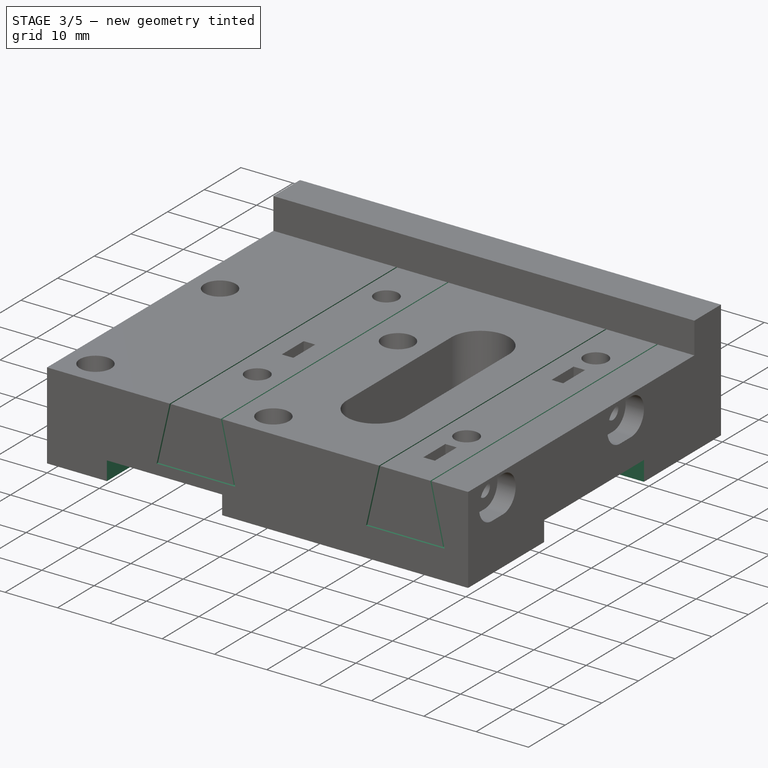
[diagram: stage 3 of 5 — iso view after this stage's code; geometry added in this stage tinted green]
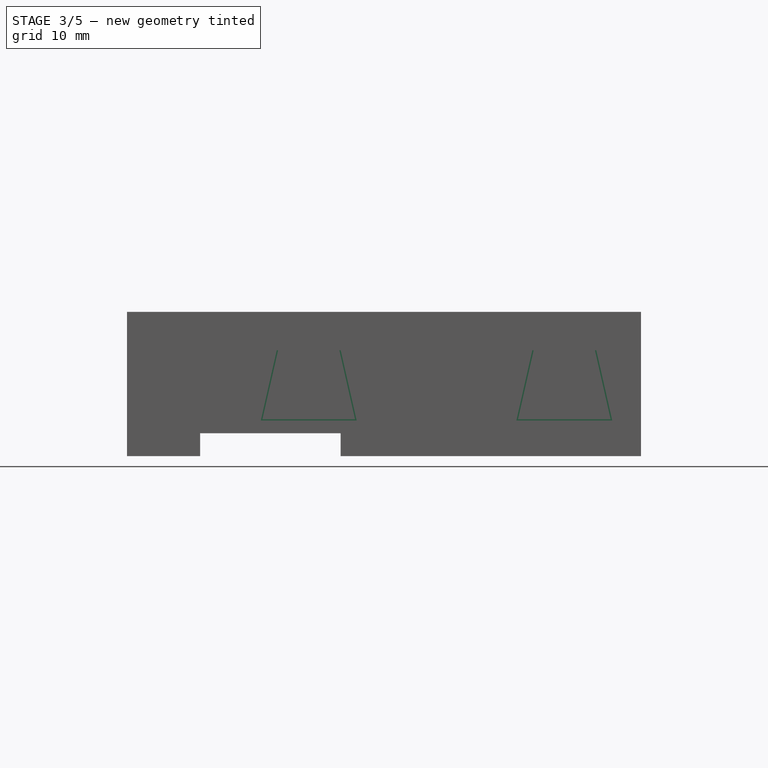
[diagram: stage 3 of 5 — front view after this stage's code; geometry added in this stage tinted green]
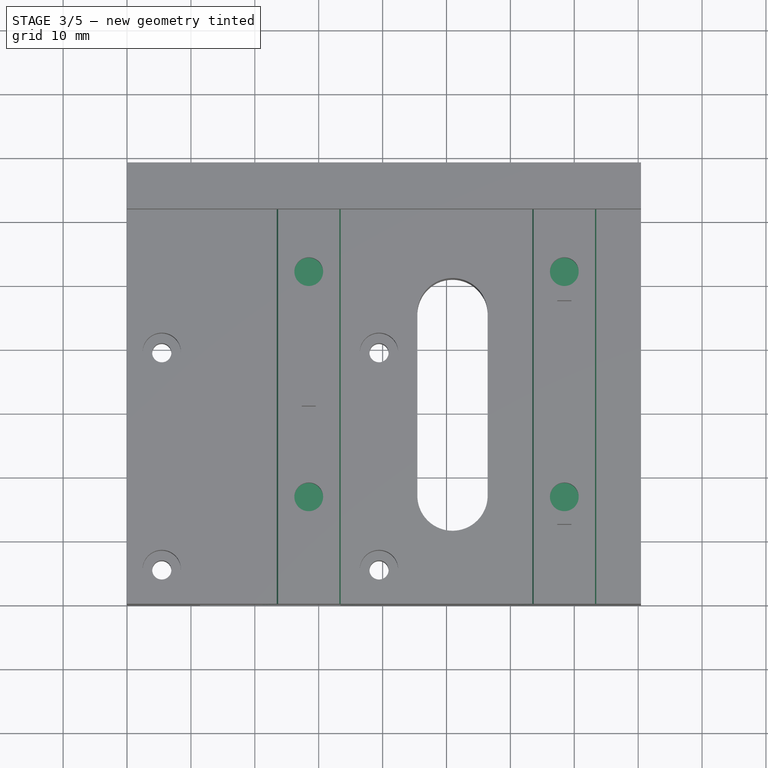
[diagram: stage 3 of 5 — top view after this stage's code; geometry added in this stage tinted green]
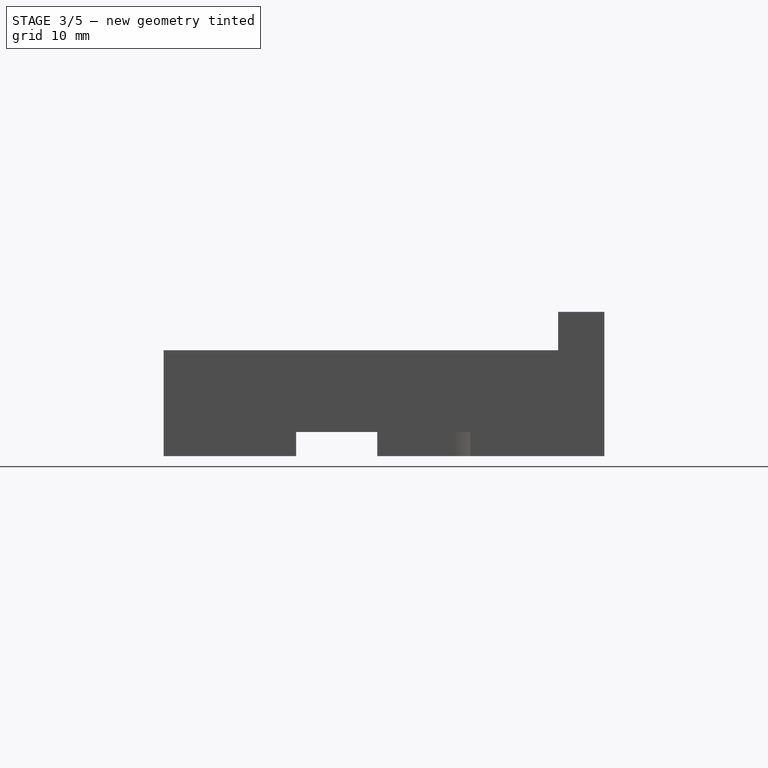
[diagram: stage 3 of 5 — right view after this stage's code; geometry added in this stage tinted green]
FEATURE [Sketcher::SketchObject] Sketch
  Exports = -> [Export005]
  ExternalGeometry = -> [Export,Hole001]
  FullyConstrained = true
  MapMode = 5
  Placement = pos=(0,0,0) rot=(1,0,0;3.14159rad)
  TreeRank = 0
  sketch-geometry (28):
    g0: LineSegment StartX=50.94 StartY=-20.75 StartZ=0 EndX=85.44 EndY=-20.75 EndZ=0
    g1: LineSegment StartX=85.44 StartY=-20.75 StartZ=0 EndX=85.44 EndY=-48 EndZ=0
    g2: LineSegment StartX=85.44 StartY=-48 StartZ=0 EndX=50.94 EndY=-48 EndZ=0
    g3: LineSegment StartX=-1 StartY=-11.44 StartZ=0 EndX=8.44 EndY=-11.44 EndZ=0
    g4: LineSegment StartX=50.94 StartY=-33.44 StartZ=0 EndX=36.44 EndY=-33.44 EndZ=0
    g5: LineSegment StartX=-1 StartY=-33.44 StartZ=0 EndX=-1 EndY=-11.44 EndZ=0
    g6: LineSegment [constr] StartX=39.44 StartY=-5.44 StartZ=0 EndX=39.44 EndY=-11.44 EndZ=0
    g7: LineSegment [constr] StartX=39.44 StartY=-33.44 StartZ=0 EndX=39.44 EndY=-39.44 EndZ=0
    g8: LineSegment StartX=50.94 StartY=-11.44 StartZ=0 EndX=50.94 EndY=-20.75 EndZ=0
    g9: LineSegment StartX=50.94 StartY=-33.44 StartZ=0 EndX=50.94 EndY=-48 EndZ=0
    g10: LineSegment [constr] StartX=11.44 StartY=1 StartZ=0 EndX=33.44 EndY=1 EndZ=0
    g11: LineSegment [constr] StartX=33.44 StartY=1 StartZ=0 EndX=33.44 EndY=-8.44 EndZ=0
    g12: LineSegment [constr] StartX=33.44 StartY=-70 StartZ=0 EndX=11.44 EndY=-70 EndZ=0
    g13: LineSegment [constr] StartX=11.44 StartY=-70 StartZ=0 EndX=11.44 EndY=-36.44 EndZ=0
    g14: LineSegment StartX=36.44 StartY=-11.44 StartZ=0 EndX=50.94 EndY=-11.44 EndZ=0
    g15: LineSegment [constr] StartX=11.44 StartY=-8.44 StartZ=0 EndX=11.44 EndY=1 EndZ=0
    g16: LineSegment StartX=8.44 StartY=-33.44 StartZ=0 EndX=-1 EndY=-33.44 EndZ=0
    g17: LineSegment [constr] StartX=33.44 StartY=-36.44 StartZ=0 EndX=33.44 EndY=-70 EndZ=0
    g18: LineSegment [constr] StartX=39.44 StartY=-5.44 StartZ=0 EndX=33.44 EndY=-5.44 EndZ=0
    g19: LineSegment [constr] StartX=5.44 StartY=-5.44 StartZ=0 EndX=11.44 EndY=-5.44 EndZ=0
    g20: ArcOfCircle [constr] CenterX=8.44 CenterY=-36.44 CenterZ=0 NormalX=0 NormalY=0 NormalZ=1 AngleXU=0 Radius=3 StartAngle=9e-16 EndAngle=1.5708
    g21: ArcOfCircle [constr] CenterX=8.44 CenterY=-8.44 CenterZ=0 NormalX=0 NormalY=0 NormalZ=1 AngleXU=0 Radius=3 StartAngle=4.71239 EndAngle=6.28319
    g22: ArcOfCircle [constr] CenterX=36.44 CenterY=-8.44 CenterZ=0 NormalX=0 NormalY=0 NormalZ=1 AngleXU=0 Radius=3 StartAngle=3.14159 EndAngle=4.71239
    g23: ArcOfCircle [constr] CenterX=36.44 CenterY=-36.44 CenterZ=0 NormalX=0 NormalY=0 NormalZ=1 AngleXU=0 Radius=3 StartAngle=1.5708 EndAngle=3.14159
    g24: LineSegment StartX=8.44 StartY=-11.44 StartZ=0 EndX=36.44 EndY=-11.44 EndZ=0
    g25: LineSegment StartX=8.44 StartY=-33.44 StartZ=0 EndX=36.44 EndY=-33.44 EndZ=0
    g26: LineSegment [constr] StartX=8.44 StartY=-11.44 StartZ=0 EndX=8.44 EndY=-33.44 EndZ=0
    g27: LineSegment [constr] StartX=36.44 StartY=-11.44 StartZ=0 EndX=36.44 EndY=-33.44 EndZ=0
  constraints (72):
    c: Coincident(g0,g1)
    c: Coincident(g1,g2)
    c: Horizontal(g0)
    c: Horizontal(g2)
    c: Vertical(g1)
    c: DistanceY(g0,g-4) = 4
    c: DistanceY(g-3,g2) = 4
    c: Coincident(g16,g5)
    c: Coincident(g5,g3)
    c: Horizontal(g3)
    c: Horizontal(g4)
    c: Vertical(g5)
    c: PointOnObject(g6,g3)
    c: Vertical(g6)
    c: PointOnObject(g7,g4)
    c: Vertical(g7)
    c: Equal(g6,g7)
    c: Coincident(g8,g14)
    c: Coincident(g8,g0)
    c: Vertical(g8)
    c: Coincident(g9,g4)
    c: Coincident(g9,g2)
    c: Vertical(g9)
    c: DistanceX(g3,g-1) = 1
    c: Coincident(g10,g11)
    c: Coincident(g17,g12)
    c: Coincident(g12,g13)
    c: Coincident(g15,g10)
    c: Horizontal(g10)
    c: Horizontal(g12)
    c: Vertical(g11)
    c: Vertical(g13)
    c: Tangent(g3,g14)
    c: Tangent(g13,g15)
    c: Tangent(g4,g16)
    c: Tangent(g11,g17)
    c: PointOnObject(g18,g11)
    c: Horizontal(g18)
    c: PointOnObject(g19,g15)
    c: Horizontal(g19)
    c: Equal(g6,g18)
    c: Equal(g18,g19)
    c: DistanceY(g-1,g10) = 1
    c: Tangent(g16,g20) = -1.5708
    c: Tangent(g13,g20) = -1.5708
    c: Tangent(g3,g21) = -1.5708
    c: Tangent(g15,g21) = -1.5708
    c: Tangent(g11,g22) = -1.5708
    c: Tangent(g14,g22) = -1.5708
    c: Tangent(g4,g23) = -1.5708
    c: Tangent(g17,g23) = -1.5708
    c: Radius(g23) = 3
    c: Equal(g23,g20)
    c: Equal(g23,g21)
    c: Equal(g23,g22)
    c: Coincident(g24,g3)
    c: Coincident(g25,g16)
    c: Coincident(g24,g14)
    c: Coincident(g25,g4)
    c: Coincident(g26,g3)
    c: Coincident(g27,g14)
    c: Coincident(g26,g16)
    c: Coincident(g27,g4)
    c: PointOnObject(g-5,g8)
    c: PointOnObject(g-6,g9)
    c: DistanceX(g-7,g1) = 5
    c: Coincident(g6,g18)
    c: Coincident(g6,g-8)
    c: Coincident(g19,g-9)
    c: Coincident(g7,g-10)
    c: PointOnObject(g8,g-5)
    c: DistanceY(g12,g-7) = 1
FEATURE [Sketcher::SketchExport] Export005
  Base = -> Sketch
  BaseRefs = -> Sketch [edge22,edge16,edge11,edge12,edge23,edge28,edge27,edge21,edge24,edge18,edge14,edge13]
  Placement = pos=(0,0,0) rot=(1,0,0;3.14159rad)
  Refs = ;g32.edge22 | ;g24.edge16 | ;g19.edge11 | ;g20.edge12 | ;g33.edge23 | ;g38.edge28 | ;g37.edge27 | ;g31.edge21 | ;g34.edge24 | ;g26.edge18 | ;g22.edge14 | ;g21.edge13
  SyncPlacement = true
  TreeRank = 47
FEATURE [Sketcher::SketchObject] Sketch018
  ExternalGeometry = -> [Hole001]
  FullyConstrained = false
  MapMode = 5
  Placement = pos=(0,0,0) rot=(1,0,0;1.5708rad)
  Support = -> [Hole001]
  TreeRank = 48
  sketch-geometry (24):
    g0: LineSegment [constr] StartX=28.44 StartY=16.58 StartZ=0 EndX=28.44 EndY=-0.0415919 EndZ=0
    g1: LineSegment [constr] StartX=68.44 StartY=16.58 StartZ=0 EndX=68.44 EndY=0.0192864 EndZ=0
    g2: LineSegment StartX=23.44 StartY=16.58 StartZ=0 EndX=23.6451 EndY=16.58 EndZ=0
    g3: LineSegment StartX=33.44 StartY=16.58 StartZ=0 EndX=35.94 EndY=5.58 EndZ=0
    g4: LineSegment StartX=35.94 StartY=5.58 StartZ=0 EndX=20.94 EndY=5.58 EndZ=0
    g5: LineSegment StartX=20.94 StartY=5.58 StartZ=0 EndX=23.44 EndY=16.58 EndZ=0
    g6: LineSegment StartX=73.2349 StartY=16.58 StartZ=0 EndX=73.44 EndY=16.58 EndZ=0
    g7: LineSegment StartX=73.44 StartY=16.58 StartZ=0 EndX=75.94 EndY=5.58 EndZ=0
    g8: LineSegment StartX=75.94 StartY=5.58 StartZ=0 EndX=60.94 EndY=5.58 EndZ=0
    g9: LineSegment StartX=60.94 StartY=5.58 StartZ=0 EndX=63.44 EndY=16.58 EndZ=0
    g10: LineSegment StartX=63.6451 StartY=16.58 StartZ=0 EndX=61.1906 EndY=5.78 EndZ=0
    g11: LineSegment StartX=61.1906 StartY=5.78 StartZ=0 EndX=75.6894 EndY=5.78 EndZ=0
    g12: LineSegment StartX=75.6894 StartY=5.78 StartZ=0 EndX=73.2349 EndY=16.58 EndZ=0
    g13: LineSegment StartX=63.44 StartY=16.58 StartZ=0 EndX=63.6451 EndY=16.58 EndZ=0
    g14: LineSegment [constr] StartX=75.6894 StartY=5.78 StartZ=0 EndX=75.8845 EndY=5.82432 EndZ=0
    g15: LineSegment [constr] StartX=75.6894 StartY=5.78 StartZ=0 EndX=75.6894 EndY=5.58 EndZ=0
    g16: LineSegment StartX=23.6451 StartY=16.58 StartZ=0 EndX=21.1906 EndY=5.78 EndZ=0
    g17: LineSegment StartX=21.1906 StartY=5.78 StartZ=0 EndX=35.6894 EndY=5.78 EndZ=0
    g18: LineSegment StartX=35.6894 StartY=5.78 StartZ=0 EndX=33.2349 EndY=16.58 EndZ=0
    g19: LineSegment StartX=33.2349 StartY=16.58 StartZ=0 EndX=33.44 EndY=16.58 EndZ=0
    g20: LineSegment [constr] StartX=35.6894 StartY=5.78 StartZ=0 EndX=35.6894 EndY=5.58 EndZ=0
    g21: LineSegment [constr] StartX=35.6894 StartY=5.78 StartZ=0 EndX=35.8845 EndY=5.82432 EndZ=0
    g22: LineSegment [constr] StartX=23.44 StartY=16.58 StartZ=0 EndX=33.44 EndY=16.58 EndZ=0
    g23: LineSegment [constr] StartX=63.44 StartY=16.58 StartZ=0 EndX=73.44 EndY=16.58 EndZ=0
  constraints (61):
    c: Vertical(g0)
    c: Vertical(g1)
    c: Symmetric(g-4,g-4,g1)
    c: Symmetric(g-3,g-3,g0)
    c: Horizontal(g2)
    c: Coincident(g19,g3)
    c: Coincident(g3,g4)
    c: Coincident(g4,g5)
    c: Coincident(g5,g2)
    c: Horizontal(g6)
    c: Coincident(g6,g7)
    c: Coincident(g7,g8)
    c: Coincident(g8,g9)
    c: Equal(g4,g8)
    c: Horizontal(g8,g3)
    c: Symmetric(g2,g19,g0)
    c: DistanceX(g9,g6) = 10
    c: DistanceY(g7,g6) = 11
    c: DistanceX(g8,g8) = 15
    c: Symmetric(g7,g8,g1)
    c: Symmetric(g3,g4,g0)
    c: Coincident(g10,g11)
    c: Coincident(g11,g12)
    c: Coincident(g13,g9)
    c: Coincident(g13,g10)
    c: Horizontal(g13)
    c: Parallel(g12,g7)
    c: Parallel(g9,g10)
    c: Coincident(g14,g11)
    c: PointOnObject(g14,g7)
    c: Coincident(g15,g11)
    c: PointOnObject(g15,g8)
    c: Vertical(g15)
    c: Perpendicular(g7,g14)
    c: Equal(g14,g15)
    c: DistanceY(g15,g15) = 0.2
    c: Symmetric(g6,g10,g1)
    c: Symmetric(g11,g10,g1)
    c: Coincident(g12,g6)
    c: Coincident(g17,g16)
    c: Coincident(g18,g17)
    c: Coincident(g2,g16)
    c: Tangent(g2,g19)
    c: PointOnObject(g19,g18)
    c: Parallel(g18,g3)
    c: Symmetric(g18,g2,g0)
    c: Symmetric(g17,g16,g0)
    c: Horizontal(g17,g10)
    c: Coincident(g20,g17)
    c: PointOnObject(g20,g4)
    c: Coincident(g21,g17)
    c: PointOnObject(g21,g3)
    c: Perpendicular(g3,g21)
    c: Equal(g20,g21)
    c: Vertical(g20)
    c: Coincident(g22,g2)
    c: Coincident(g22,g3)
    c: Horizontal(g9,g1)
    c: Coincident(g23,g9)
    c: Coincident(g23,g6)
    c: Equal(g23,g22)
FEATURE [PartDesign::Pocket] Pocket013  label="PocketKeyways"
  BaseFeature = -> Hole001
  ClaimChildren = false
  Fit = 0
  FitJoin = 0
  InnerFit = 0
  InnerFitJoin = 0
  InnerTaperAngle = 0
  InnerTaperAngleRev = 0
  Length = 0
  Length2 = 100
  Linearize = true
  NewSolid = false
  Profile = -> Sketch018
  Refine = true
  Suppress = false
  TreeRank = 49
  Type = 3
  UpToFace = -> Hole001 [Face8]
  _ProfileBasedVersion = 1
FEATURE [PartDesign::Pocket] Pocket014
  BaseFeature = -> Pocket013
  ClaimChildren = false
  Fit = 0
  FitJoin = 0
  InnerFit = 0
  InnerFitJoin = 0
  InnerTaperAngle = 0
  InnerTaperAngleRev = 0
  Length = 0
  Length2 = 100
  Linearize = true
  NewSolid = false
  Offset = -2
  Profile = -> Sketch
  Refine = true
  Suppress = false
  TreeRank = 50
  Type = 3
  UpToFace = -> Pocket013 [Face59]
  _ProfileBasedVersion = 1
FEATURE [PartDesign::Pocket] Pocket015
  BaseFeature = -> Pocket014
  ClaimChildren = false
  Fit = 0
  FitJoin = 0
  InnerFit = 0
  InnerFitJoin = 0
  InnerTaperAngle = 0
  InnerTaperAngleRev = 0
  Length = 0
  Length2 = 100
  Linearize = true
  NewSolid = false
  Offset = -0.2
  Profile = -> Export005
  Refine = true
  Suppress = false
  TreeRank = 51
  Type = 3
  UpToFace = -> Pocket014 [Face45]
  _ProfileBasedVersion = 1
FEATURE [Sketcher::SketchObject] Sketch019
  ExternalGeometry = -> [Pocket015]
  FullyConstrained = true
  MapMode = 5
  Placement = pos=(-3e-16,1.3e-15,5.78) rot=(1,0,0;3.14159rad)
  Support = -> [Pocket015]
  TreeRank = 52
  sketch-geometry (4):
    g0: Circle CenterX=28.44 CenterY=-16.75 CenterZ=0 NormalX=0 NormalY=0 NormalZ=1 AngleXU=0 Radius=2.85
    g1: Circle CenterX=28.44 CenterY=-52 CenterZ=0 NormalX=0 NormalY=0 NormalZ=1 AngleXU=0 Radius=2.85
    g2: Circle CenterX=68.44 CenterY=-16.75 CenterZ=0 NormalX=0 NormalY=0 NormalZ=1 AngleXU=0 Radius=2.85
    g3: Circle CenterX=68.44 CenterY=-52 CenterZ=0 NormalX=0 NormalY=0 NormalZ=1 AngleXU=0 Radius=2.85
  constraints (8):
    c: Coincident(g0,g-3)
    c: Coincident(g1,g-4)
    c: Coincident(g2,g-6)
    c: Coincident(g3,g-5)
    c: Diameter(g3) = 5.7
    c: Equal(g3,g1)
    c: Equal(g3,g0)
    c: Equal(g3,g2)
FEATURE [PartDesign::Pocket] Pocket016
  BaseFeature = -> Pocket015
  ClaimChildren = false
  Fit = 0
  FitJoin = 0
  InnerFit = 0
  InnerFitJoin = 0
  InnerTaperAngle = 0
  InnerTaperAngleRev = 0
  Length = 6.2
  Length2 = 100
  Linearize = true
  NewSolid = false
  Profile = -> Sketch019
  Refine = true
  Suppress = false
  TreeRank = 53
  Type = 0
  _ProfileBasedVersion = 1
FEATURE [PartDesign::Plane] DatumPlane
  Length = 43
  MapMode = 1
  MinimumLength = 10
  MinimumWidth = 10
  Placement = pos=(33.2349,61.75,16.58) rot=(1,0,0;1.5708rad)
  ResizeMode = 0
  Support = -> [Pocket016]
  TreeRank = 54
  Width = 16.58
FEATURE [Sketcher::SketchObject] Sketch020
  ExternalGeometry = -> [Pocket016]
  FullyConstrained = true
  MapMode = 5
  Placement = pos=(33.2349,61.75,16.58) rot=(1,0,0;1.5708rad)
  Support = -> [DatumPlane]
  TreeRank = 55
  sketch-geometry (8):
    g0: ArcOfCircle CenterX=-4.7949 CenterY=-5.4 CenterZ=0 NormalX=0 NormalY=0 NormalZ=1 AngleXU=0 Radius=2.5 StartAngle=1e-16 EndAngle=3.14159
    g1: LineSegment [constr] StartX=-9.5898 StartY=-8.53e-14 StartZ=0 EndX=-4.7949 EndY=-8.53e-14 EndZ=0
    g2: LineSegment [constr] StartX=-4.7949 StartY=-8.53e-14 StartZ=0 EndX=0 EndY=3.6e-15 EndZ=0
    g3: LineSegment [constr] StartX=-4.7949 StartY=-8.53e-14 StartZ=0 EndX=-4.7949 EndY=-5.4 EndZ=0
    g4: LineSegment [constr] StartX=-4.7949 StartY=-5.4 StartZ=0 EndX=-4.7949 EndY=-10.8 EndZ=0
    g5: LineSegment StartX=-7.2949 StartY=-5.4 StartZ=0 EndX=-7.2949 EndY=-10.8 EndZ=0
    g6: LineSegment StartX=-7.2949 StartY=-10.8 StartZ=0 EndX=-2.2949 EndY=-10.8 EndZ=0
    g7: LineSegment StartX=-2.2949 StartY=-10.8 StartZ=0 EndX=-2.2949 EndY=-5.4 EndZ=0
  constraints (22):
    c: Diameter(g0) = 5
    c: Coincident(g1,g-4)
    c: Horizontal(g1)
    c: Coincident(g2,g1)
    c: Coincident(g2,g-3)
    c: Equal(g2,g1)
    c: Coincident(g3,g1)
    c: Coincident(g3,g0)
    c: Coincident(g4,g0)
    c: Vertical(g4)
    c: Horizontal(g4,g-3)
    c: Vertical(g3)
    c: Equal(g3,g4)
    c: Tangent(g0,g5) = -1.5708
    c: Coincident(g5,g6)
    c: Horizontal(g6)
    c: Coincident(g6,g7)
    c: Coincident(g7,g0)
    c: Vertical(g7)
    c: Horizontal(g0,g0)
    c: Horizontal(g6,g-3)
    c: Vertical(g5)
FEATURE [PartDesign::Pocket] Pocket017
  BaseFeature = -> Pocket016
  ClaimChildren = false
  Fit = 0
  FitJoin = 0
  InnerFit = 0
  InnerFitJoin = 0
  InnerTaperAngle = 0
  InnerTaperAngleRev = 0
  Length = 6
  Length2 = 100
  Linearize = true
  NewSolid = false
  Profile = -> Sketch020
  Refine = true
  Reversed = true
  Suppress = false
  TreeRank = 56
  Type = 0
  _ProfileBasedVersion = 1
FEATURE [Sketcher::SketchObject] Sketch022
  AttachmentOffset = pos=(0,0,2) rot=(0,0,1;0rad)
  ExternalGeometry = -> [Pocket017]
  FullyConstrained = true
  MapMode = 5
  Placement = pos=(0,59.75,4e-16) rot=(1,0,0;1.5708rad)
  Support = -> [Pocket017]
  TreeRank = 58
  sketch-geometry (4):
    g0: ArcOfCircle CenterX=28.44 CenterY=11.18 CenterZ=0 NormalX=0 NormalY=0 NormalZ=1 AngleXU=0 Radius=4.5 StartAngle=0 EndAngle=3.14159
    g1: LineSegment StartX=23.94 StartY=11.18 StartZ=0 EndX=23.94 EndY=5.78 EndZ=0
    g2: LineSegment StartX=32.94 StartY=11.18 StartZ=0 EndX=32.94 EndY=5.78 EndZ=0
    g3: LineSegment StartX=32.94 StartY=5.78 StartZ=0 EndX=23.94 EndY=5.78 EndZ=0
  constraints (12):
    c: Coincident(g0,g-3)
    c: Diameter(g0) = 9
    c: Horizontal(g0,g0)
    c: Horizontal(g0,g0)
    c: Coincident(g1,g0)
    c: PointOnObject(g1,g-4)
    c: Vertical(g1)
    c: Coincident(g2,g0)
    c: PointOnObject(g2,g-4)
    c: Vertical(g2)
    c: Coincident(g3,g2)
    c: Coincident(g3,g1)
FEATURE [PartDesign::Pocket] Pocket018
  BaseFeature = -> Pocket017
  ClaimChildren = false
  Fit = 0
  FitJoin = 0
  InnerFit = 0
  InnerFitJoin = 0
  InnerTaperAngle = 0
  InnerTaperAngleRev = 0
  Length = 5
  Length2 = 100
  Linearize = true
  NewSolid = false
  Profile = -> Sketch022
  Refine = true
  Reversed = true
  Suppress = false
  TreeRank = 59
  Type = 2
  _ProfileBasedVersion = 1
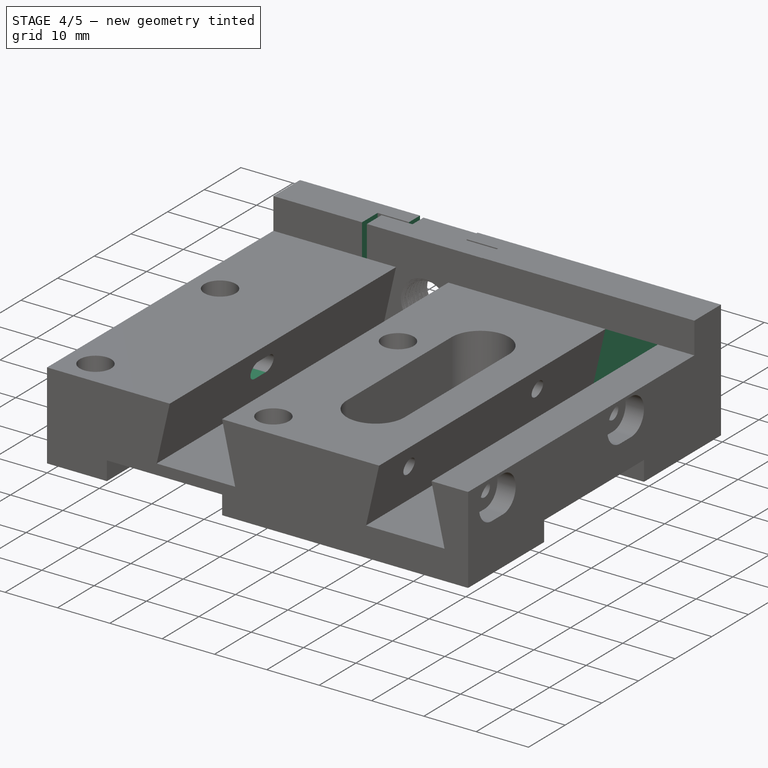
[diagram: stage 4 of 5 — iso view after this stage's code; geometry added in this stage tinted green]
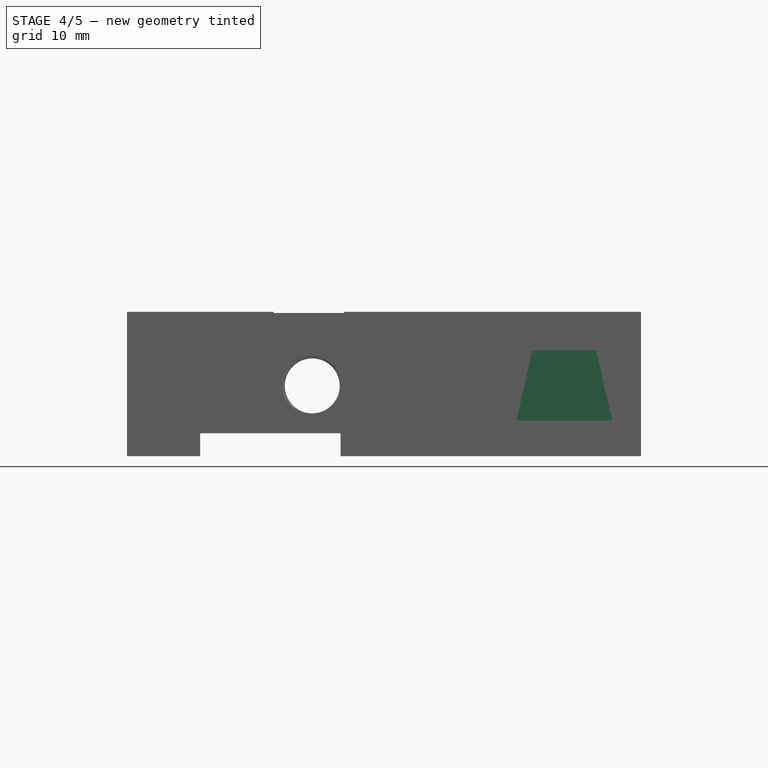
[diagram: stage 4 of 5 — front view after this stage's code; geometry added in this stage tinted green]
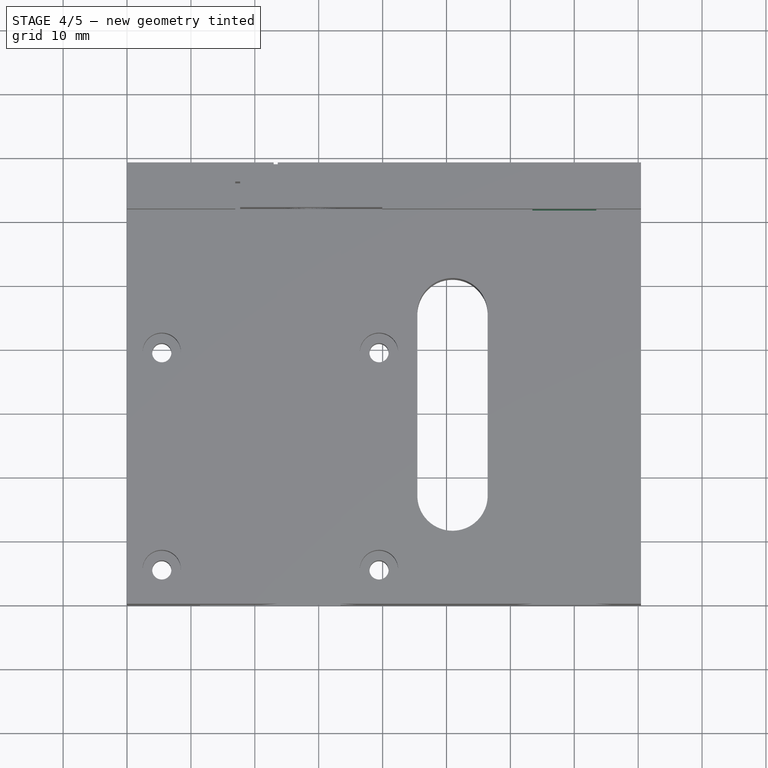
[diagram: stage 4 of 5 — top view after this stage's code; geometry added in this stage tinted green]
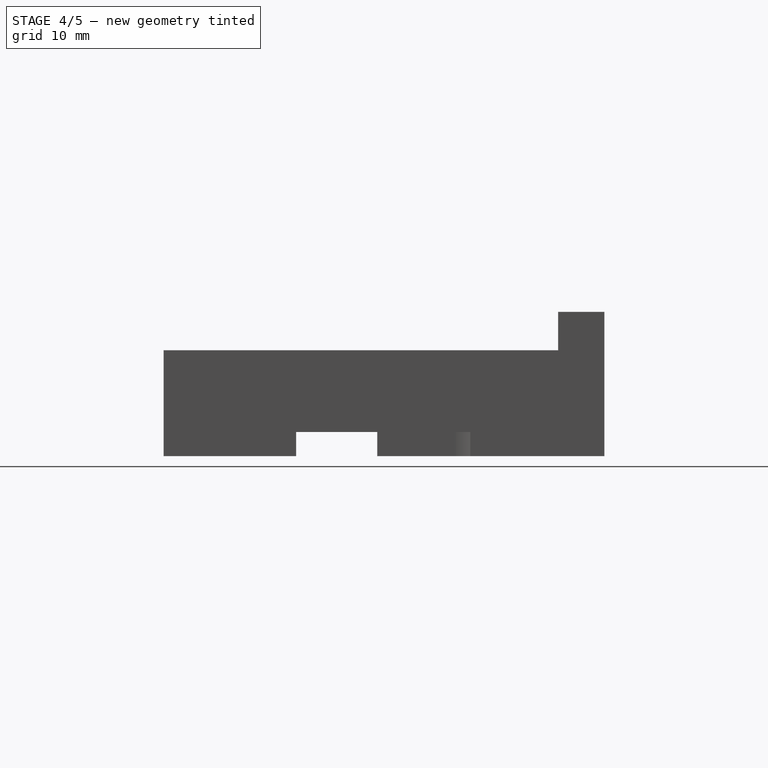
[diagram: stage 4 of 5 — right view after this stage's code; geometry added in this stage tinted green]
FEATURE [PartDesign::Body] Body004  label="E2_Adjustment_Screw"
  AutoGroupSolids = false
  BaseFeature = -> Sweep001
  ExportMode = 0
  Group = -> [BaseFeature003,Sketch027,Pad,Sketch028,Groove,Sketch029,Pad004,Sketch030,Pocket022]
  Origin = -> Origin004
  Placement = pos=(-24,0,0) rot=(0,0,1;0rad)
  Tip = -> Pocket022
  TreeRank = 140
  _ExportChildren = -> [BaseFeature003,Pad,Groove,Pad004,Pocket022]
  _GroupVersion = 1
FEATURE [PartDesign::SubShapeBinder] BaseFeature  label="BaseFeature(Split_plate)"
  BindCopyOnChange = 0
  BindMode = 0
  ClaimChildren = false
  Context = -> Body [BaseFeature.]
  FillStyle = 0
  Fuse = true
  MakeFace = true
  PartialLoad = false
  Relative = true
  Support = -> [Body001[Split_i0.]]
  TreeRank = 229
  _Version = 8
FEATURE [PartDesign::SubShapeBinder] BaseFeature004  label="BaseFeature004(Split_left_keyway)"
  BindCopyOnChange = 0
  BindMode = 0
  ClaimChildren = false
  Context = -> Body005 [BaseFeature004.]
  FillStyle = 0
  Fuse = true
  MakeFace = true
  PartialLoad = false
  Relative = true
  Support = -> [Body001[Split_i1.]]
  TreeRank = 242
  _Version = 8
FEATURE [PartDesign::Body] Body005  label="E2_Left_Keyway"
  AutoGroupSolids = false
  BaseFeature = -> BaseFeature004
  ExportMode = 0
  Group = -> [BaseFeature004]
  Origin = -> Origin005
  Tip = -> BaseFeature004
  TreeRank = 241
  _ExportChildren = -> [BaseFeature004]
  _GroupVersion = 1
FEATURE [PartDesign::SubShapeBinder] BaseFeature005  label="BaseFeature005(Split_right_keyway)"
  BindCopyOnChange = 0
  BindMode = 0
  ClaimChildren = false
  Context = -> Body006 [BaseFeature005.]
  FillStyle = 0
  Fuse = true
  MakeFace = true
  PartialLoad = false
  Relative = true
  Support = -> [Body001[Split_i2.]]
  TreeRank = 255
  _Version = 8
FEATURE [PartDesign::Body] Body006  label="E2_Right_Keyway"
  AutoGroupSolids = false
  BaseFeature = -> BaseFeature005
  ExportMode = 0
  Group = -> [BaseFeature005]
  Origin = -> Origin006
  Tip = -> BaseFeature005
  TreeRank = 254
  _ExportChildren = -> [BaseFeature005]
  _GroupVersion = 1
FEATURE [Sketcher::SketchObject] Sketch033
  ExternalGeometry = -> [BaseFeature]
  FullyConstrained = true
  MapMode = 5
  Placement = pos=(13,0,1.4e-15) rot=(0.57735,-0.57735,-0.57735;2.0944rad)
  Support = -> [BaseFeature]
  TreeRank = 256
  sketch-geometry (5):
    g0: ArcOfCircle CenterX=-28 CenterY=12.58 CenterZ=0 NormalX=0 NormalY=0 NormalZ=1 AngleXU=0 Radius=1.6 StartAngle=1.5708 EndAngle=4.71239
    g1: ArcOfCircle CenterX=-25 CenterY=12.58 CenterZ=0 NormalX=0 NormalY=0 NormalZ=1 AngleXU=0 Radius=1.6 StartAngle=4.71239 EndAngle=7.85398
    g2: LineSegment StartX=-28 StartY=10.98 StartZ=0 EndX=-25 EndY=10.98 EndZ=0
    g3: LineSegment StartX=-28 StartY=14.18 StartZ=0 EndX=-25 EndY=14.18 EndZ=0
    g4: LineSegment [constr] StartX=-28 StartY=14.08 StartZ=0 EndX=-28 EndY=14.18 EndZ=0
  constraints (11):
    c: Tangent(g0,g3) = 1.5708
    c: Tangent(g0,g2) = -1.5708
    c: Tangent(g2,g1) = -1.5708
    c: Tangent(g3,g1) = 1.5708
    c: Horizontal(g2)
    c: Coincident(g0,g-3)
    c: Coincident(g-4,g1)
    c: PointOnObject(g4,g-3)
    c: Coincident(g4,g0)
    c: Perpendicular(g4,g-3,g4) = 1.5708
    c: DistanceY(g4,g4) = 0.1
FEATURE [PartDesign::Pocket] Pocket025
  BaseFeature = -> BaseFeature
  ClaimChildren = false
  Fit = 0
  FitJoin = 0
  InnerFit = 0
  InnerFitJoin = 0
  InnerTaperAngle = 0
  InnerTaperAngleRev = 0
  Length = 0
  Length2 = 100
  Linearize = true
  NewSolid = false
  Profile = -> Sketch033
  Refine = true
  Suppress = false
  TreeRank = 257
  Type = 3
  UpToFace = -> BaseFeature [Face83]
  _ProfileBasedVersion = 1
FEATURE [Sketcher::SketchObject] Sketch024  label="Cutter"
  ExternalGeometry = -> [Pocket019]
  FullyConstrained = true
  MapMode = 5
  Placement = pos=(0,61.75,0) rot=(1,0,0;1.5708rad)
  Support = -> [Pocket019]
  TreeRank = 65
  sketch-geometry (12):
    g0: LineSegment StartX=0 StartY=22.58 StartZ=0 EndX=0 EndY=16.58 EndZ=0
    g1: LineSegment StartX=0 StartY=16.58 StartZ=0 EndX=23.6451 EndY=16.58 EndZ=0
    g2: LineSegment StartX=23.6451 StartY=16.58 StartZ=0 EndX=21.1906 EndY=5.78 EndZ=0
    g3: LineSegment StartX=21.1906 StartY=5.78 StartZ=0 EndX=35.6894 EndY=5.78 EndZ=0
    g4: LineSegment StartX=35.6894 StartY=5.78 StartZ=0 EndX=33.2349 EndY=16.58 EndZ=0
    g5: LineSegment StartX=33.2349 StartY=16.58 StartZ=0 EndX=63.6451 EndY=16.58 EndZ=0
    g6: LineSegment StartX=63.6451 StartY=16.58 StartZ=0 EndX=61.1906 EndY=5.78 EndZ=0
    g7: LineSegment StartX=61.1906 StartY=5.78 StartZ=0 EndX=75.6894 EndY=5.78 EndZ=0
    g8: LineSegment StartX=75.6894 StartY=5.78 StartZ=0 EndX=73.2349 EndY=16.58 EndZ=0
    g9: LineSegment StartX=73.2349 StartY=16.58 StartZ=0 EndX=80.44 EndY=16.58 EndZ=0
    g10: LineSegment StartX=80.44 StartY=16.58 StartZ=0 EndX=80.44 EndY=22.58 EndZ=0
    g11: LineSegment StartX=80.44 StartY=22.58 StartZ=0 EndX=0 EndY=22.58 EndZ=0
  constraints (24):
    c: Coincident(g-8,g0)
    c: Coincident(g0,g-8)
    c: Coincident(g0,g1)
    c: Coincident(g1,g-3)
    c: Coincident(g1,g2)
    c: Coincident(g2,g-3)
    c: Coincident(g2,g3)
    c: Coincident(g3,g-4)
    c: Coincident(g3,g4)
    c: Coincident(g4,g-4)
    c: Coincident(g4,g5)
    c: Coincident(g5,g-5)
    c: Coincident(g5,g6)
    c: Coincident(g6,g-5)
    c: Coincident(g6,g7)
    c: Coincident(g7,g-6)
    c: Coincident(g7,g8)
    c: Coincident(g8,g-6)
    c: Coincident(g8,g9)
    c: Coincident(g9,g-7)
    c: Coincident(g9,g10)
    c: Coincident(g10,g-7)
    c: Coincident(g10,g11)
    c: Coincident(g11,g0)
FEATURE [PartDesign::Split] Split
  BaseFeature = -> Pocket024
  Fragment = false
  Mode = 0
  NewSolid = false
  Solids = -> [Split_i0,Split_i1,Split_i2]
  Suppress = false
  Tolerance = 0
  Tools = -> [Binder001]
  TreeRank = 71
  _Version = 1
FEATURE [PartDesign::Solid] Split_i0  label="Split_plate"
  Active = false
  Parent = -> Split
  TreeRank = 72
FEATURE [PartDesign::Solid] Split_i1  label="Split_left_keyway"
  Active = true
  Parent = -> Split
  TreeRank = 73
FEATURE [PartDesign::Solid] Split_i2  label="Split_right_keyway"
  Active = false
  Parent = -> Split
  TreeRank = 74
FEATURE [Sketcher::SketchObject] Sketch023
  ExternalGeometry = -> [Pocket018]
  FullyConstrained = true
  MapMode = 5
  Placement = pos=(0,61.75,0) rot=(1,0,0;1.5708rad)
  Support = -> [Pocket018]
  TreeRank = 211
  sketch-geometry (5):
    g0: Circle [constr] CenterX=28.44 CenterY=11.18 CenterZ=0 NormalX=0 NormalY=0 NormalZ=1 AngleXU=0 Radius=3.5
    g1: LineSegment StartX=22.94 StartY=16.68 StartZ=0 EndX=33.94 EndY=16.68 EndZ=0
    g2: LineSegment StartX=33.94 StartY=16.68 StartZ=0 EndX=33.94 EndY=5.68 EndZ=0
    g3: LineSegment StartX=33.94 StartY=5.68 StartZ=0 EndX=22.94 EndY=5.68 EndZ=0
    g4: LineSegment StartX=22.94 StartY=5.68 StartZ=0 EndX=22.94 EndY=16.68 EndZ=0
  constraints (13):
    c: Coincident(g0,g-3)
    c: Diameter(g0) = 7
    c: Coincident(g1,g2)
    c: Coincident(g2,g3)
    c: Coincident(g3,g4)
    c: Coincident(g4,g1)
    c: Horizontal(g1)
    c: Horizontal(g3)
    c: Vertical(g2)
    c: Vertical(g4)
    c: Symmetric(g2,g1,g-3)
    c: Equal(g3,g4)
    c: DistanceX(g3,g3) = 11
FEATURE [PartDesign::Pocket] Pocket019
  BaseFeature = -> Pocket018
  ClaimChildren = false
  Fit = 0
  FitJoin = 0
  InnerFit = 0
  InnerFitJoin = 0
  InnerTaperAngle = 0
  InnerTaperAngleRev = 0
  Length = 5
  Length2 = 100
  Linearize = true
  NewSolid = false
  Profile = -> Sketch023
  Refine = true
  Suppress = false
  TreeRank = 212
  Type = 1
  _ProfileBasedVersion = 1
FEATURE [Sketcher::SketchObject] Sketch031
  ExternalGeometry = -> [Pocket019]
  FullyConstrained = true
  MapMode = 5
  Placement = pos=(0,1.2e-15,5.68) rot=(0,0,1;0rad)
  Support = -> [Pocket019]
  TreeRank = 213
  sketch-geometry (4):
    g0: LineSegment StartX=16.94 StartY=66 StartZ=0 EndX=39.94 EndY=66 EndZ=0
    g1: LineSegment StartX=39.94 StartY=66 StartZ=0 EndX=39.94 EndY=61.75 EndZ=0
    g2: LineSegment StartX=39.94 StartY=61.75 StartZ=0 EndX=16.94 EndY=61.75 EndZ=0
    g3: LineSegment StartX=16.94 StartY=61.75 StartZ=0 EndX=16.94 EndY=66 EndZ=0
  constraints (12):
    c: Coincident(g0,g1)
    c: Coincident(g1,g2)
    c: Coincident(g2,g3)
    c: Coincident(g3,g0)
    c: Horizontal(g0)
    c: Horizontal(g2)
    c: Vertical(g1)
    c: Vertical(g3)
    c: DistanceY(g0,g-4) = 3
    c: DistanceX(g-4,g1) = 6
    c: DistanceX(g2,g-3) = 6
    c: DistanceY(g-4,g1) = 0
FEATURE [PartDesign::Pocket] Pocket023
  BaseFeature = -> Pocket019
  ClaimChildren = false
  Fit = 0
  FitJoin = 0
  InnerFit = 0
  InnerFitJoin = 0
  InnerTaperAngle = 0
  InnerTaperAngleRev = 0
  Length = 5
  Length2 = 100
  Linearize = true
  NewSolid = false
  Profile = -> Sketch031
  Refine = true
  Reversed = true
  Suppress = false
  TreeRank = 214
  Type = 1
  _ProfileBasedVersion = 1
FEATURE [Sketcher::SketchObject] Sketch032
  ExternalGeometry = -> [Pocket023]
  FullyConstrained = true
  MapMode = 5
  Placement = pos=(0,3.7e-15,16.68) rot=(1,0,0;3.14159rad)
  Support = -> [Pocket023]
  TreeRank = 215
  sketch-geometry (4):
    g0: LineSegment StartX=22.94 StartY=-66 StartZ=0 EndX=33.94 EndY=-66 EndZ=0
    g1: LineSegment StartX=33.94 StartY=-66 StartZ=0 EndX=33.94 EndY=-69 EndZ=0
    g2: LineSegment StartX=33.94 StartY=-69 StartZ=0 EndX=22.94 EndY=-69 EndZ=0
    g3: LineSegment StartX=22.94 StartY=-69 StartZ=0 EndX=22.94 EndY=-66 EndZ=0
  constraints (10):
    c: Coincident(g0,g1)
    c: Coincident(g1,g2)
    c: Coincident(g2,g3)
    c: Coincident(g3,g0)
    c: Horizontal(g0)
    c: Horizontal(g2)
    c: Vertical(g1)
    c: Vertical(g3)
    c: Coincident(g0,g-3)
    c: Coincident(g1,g-4)
FEATURE [PartDesign::Pocket] Pocket024
  BaseFeature = -> Pocket023
  ClaimChildren = false
  Fit = 0
  FitJoin = 0
  InnerFit = 0
  InnerFitJoin = 0
  InnerTaperAngle = 0
  InnerTaperAngleRev = 0
  Length = 5
  Length2 = 100
  Linearize = true
  NewSolid = false
  Profile = -> Sketch032
  Refine = true
  Suppress = false
  TreeRank = 216
  Type = 1
  _ProfileBasedVersion = 1
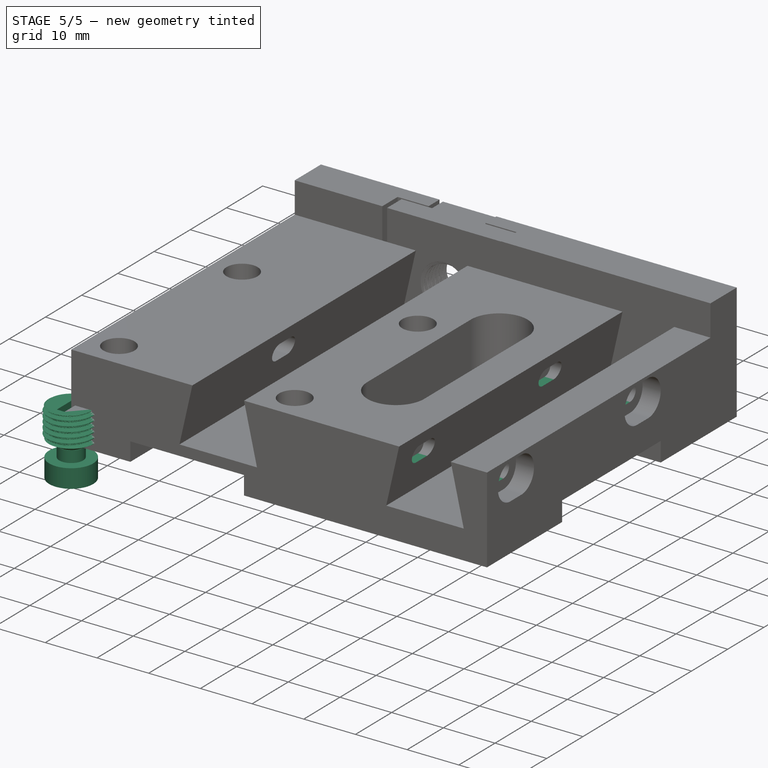
[diagram: stage 5 of 5 — iso view after this stage's code; geometry added in this stage tinted green]
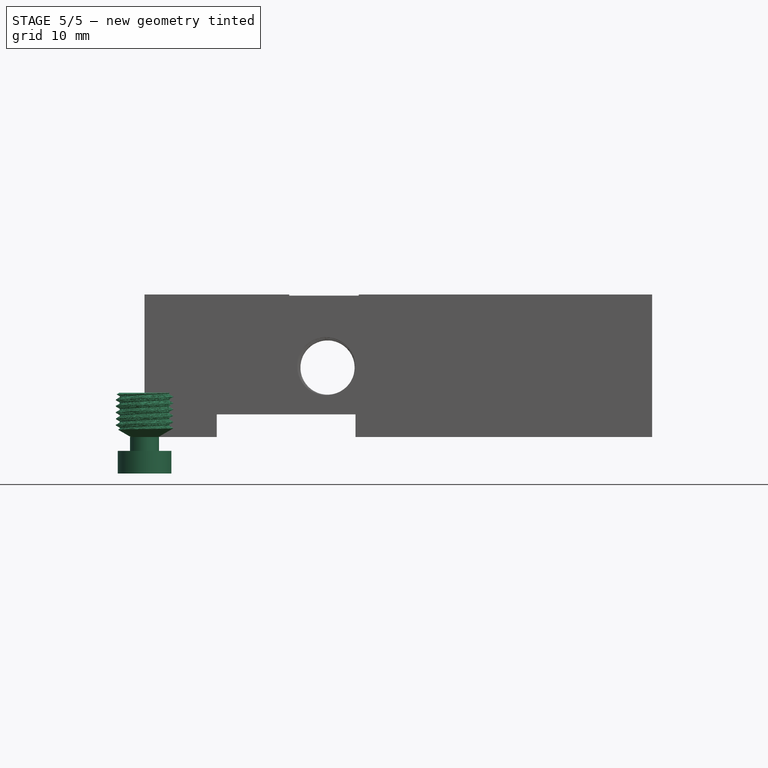
[diagram: stage 5 of 5 — front view after this stage's code; geometry added in this stage tinted green]
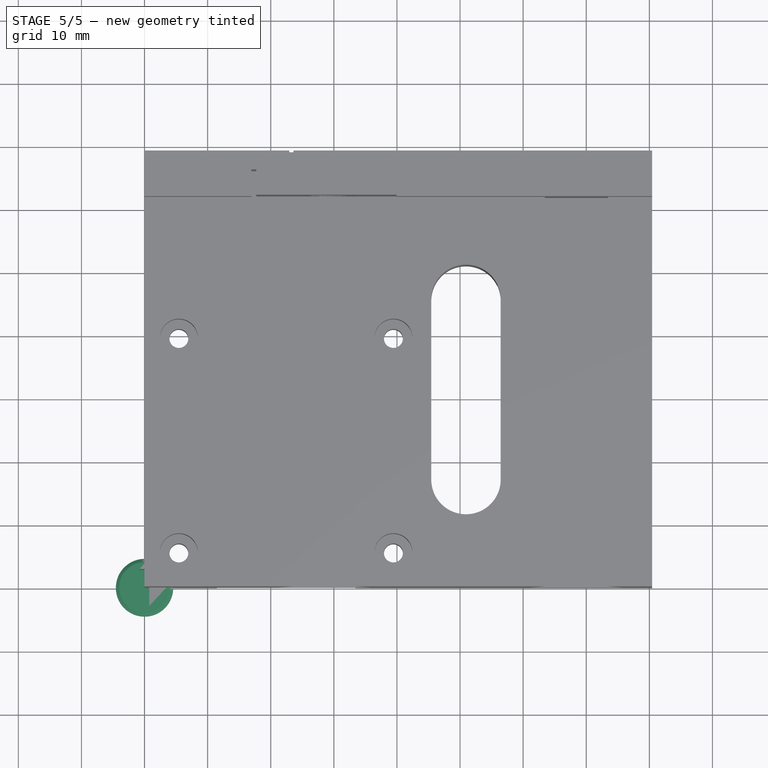
[diagram: stage 5 of 5 — top view after this stage's code; geometry added in this stage tinted green]
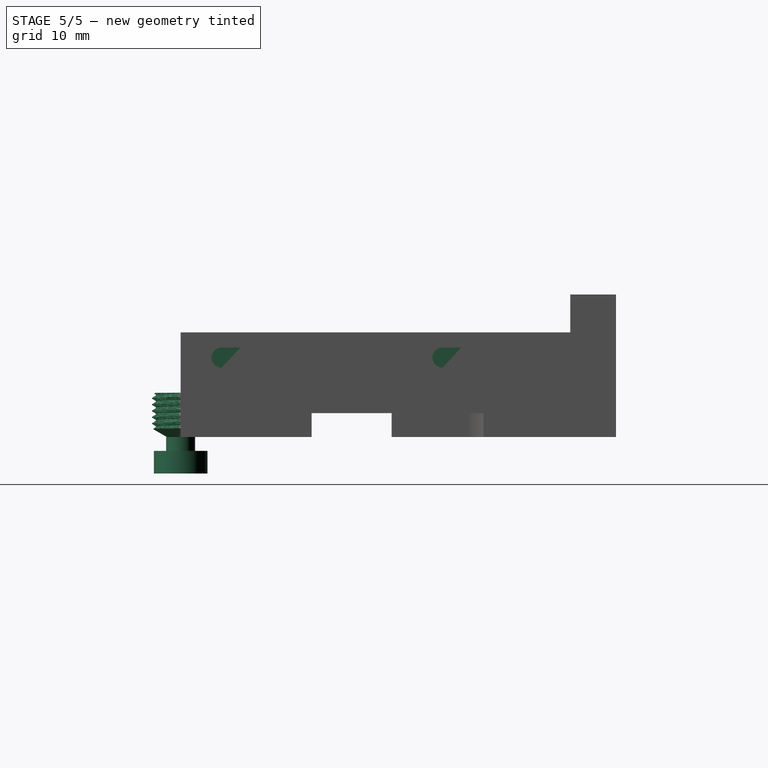
[diagram: stage 5 of 5 — right view after this stage's code; geometry added in this stage tinted green]
FEATURE [PartDesign::SubShapeBinder] Binder  label="Binder(Pad002)"
  BindCopyOnChange = 0
  BindMode = 0
  ClaimChildren = false
  Context = -> Body001 [Binder.]
  FillStyle = 0
  Fuse = false
  MakeFace = true
  PartialLoad = false
  Refine = true
  Relative = true
  Support = -> [Pad002[Face14]]
  TreeRank = 0
  _Version = 7
FEATURE [PartDesign::SubShapeBinder] Binder001  label="Binder001(Cutter)"
  BindCopyOnChange = 0
  BindMode = 0
  ClaimChildren = false
  Context = -> Body001 [Binder001.]
  FillStyle = 0
  Fuse = false
  MakeFace = true
  PartialLoad = false
  Relative = true
  Support = -> [Sketch024]
  TreeRank = 66
  _Version = 8
FEATURE [Part::Part2DObjectPython] VThreadProfile001  # Draft 2D object (typed FeaturePython)
  Area = 56.2129
  Closed = true
  Continuity = C3
  Instructions = Expand this with the ... button to view instructions | Sweep this object along a helix of the same pitch to produce your thread. | It is recommended to make the helix in the ThreadProfile workbench. | If there is an active Body the ThreadProfile object will be put into it.,If not it can be dragged and dropped into the body later. | If there is an active Body when the helix is made there will be made a ShapeBinder for it | For internal threads you will need to cut the Sweep object out of a cylinder, or if using Part Design sweep it as a Subtractive Pipe. | Always use Frenet mode | I have provided some presets, but it is possible there could be some errors.  Double check for mission critical applications. | Also, the tolerances might be different from what you wish to have.  I believe the internal minor diameters are all minimum and the external are all maximum.
  InternalOrExternal = 1
  MakeFace = true
  MinorDiameter = 8
  Parameterization = 1
  Pitch = 1
  Points = (719) [(3.99749,0.0349341,0),(3.99478,0.0698261,0),(3.99185,0.104676,0),(3.9887,0.139482,0),(3.98532,0.174245,0),(3.98171,0.208963,0),(3.97786,0.243635,0),+712 more]
  Presets = 0
  Quality = 1
  ThreadCount = 7
  TreeRank = 125
  Version = 1.69
  external_data = [-0.00235387,-0.00461052,-0.00677828,-0.00886428,-0.0108747,-0.0128149,-0.0146895,-0.0165028,-0.0182584,-0.0199597,-0.0216095,-0.0232106,-0.0247653,-0.0262759,-0.0277444,-0.0291725,-0.0305621,-0.0319145,-0.0332313,-0.0345138,-0.0357632,+698 more]
  internal_data = [0,0,0,0,0,0,0,0,0,0,0,0,0,0,0,0,0,0,0,0,0,0,0,0,0,0,0,0,0,0,0,0,0,0,0,0,0,0,0,0,0,0,0,0,0,0,0,0,0,0,0,0,0,0,0,0,0,0,0,0,0,0,0,0,0,0,0,0,0,0,0,0,0,0,0,0,0,0,0,0,0,0,0,0,0,0,0,0,0,0,0,0,0,0,0,0,0,0,0,0,0,0,0,0,0,0,0,0,0,0,0,0,0,0,0,0,0,0,0,0,+599 more]
  preset_names = <blob: 3959 chars omitted>
  presets_data = [0,0,0,2.20878,24.1173,24.6888,0.25,0.693,0.729,0.25,0.793,0.829,0.25,0.893,0.929,0.3,1.032,1.075,0.35,1.171,1.221,0.35,1.371,1.421,0.4,1.509,1.567,0.45,1.648,1.713,0.45,1.948,2.013,0.5,2.387,2.459,0.6,2.764,2.85,0.7,3.141,3.242,0.75,3.58,+712 more]
FEATURE [Part::Helix] Helix001
  Angle = 0
  AttacherType = Attacher::AttachEngine3D
  Height = 7
  LocalCoord = 0
  Pitch = 1
  Radius = 1
  Style = 0
  TreeRank = 126
  expr: Placement.Base.x = VThreadProfile001.Placement.Base.x
  expr: Placement.Base.y = VThreadProfile001.Placement.Base.y
  expr: Placement.Base.z = VThreadProfile001.Placement.Base.z
  expr: Placement.Rotation.Angle = VThreadProfile001.Placement.Rotation.Angle
  expr: Placement.Rotation.Axis.x = VThreadProfile001.Placement.Rotation.Axis.x
  expr: Placement.Rotation.Axis.y = VThreadProfile001.Placement.Rotation.Axis.y
  expr: Placement.Rotation.Axis.z = VThreadProfile001.Placement.Rotation.Axis.z
  expr: Height = VThreadProfile001.ThreadCount * VThreadProfile001.Pitch
  expr: Pitch = VThreadProfile001.Pitch
FEATURE [Part::Sweep] Sweep001
  Frenet = true
  Sections = -> [VThreadProfile001]
  Solid = true
  Spine = -> Helix001 [Edge1,Edge2,Edge3,Edge4,Edge5,Edge6,Edge7]
  Transition = 1
  TreeRank = 127
FEATURE [PartDesign::FeatureBase] BaseFeature003
  BaseFeature = -> Sweep001
  NewSolid = false
  Suppress = false
  TreeRank = 137
FEATURE [Sketcher::SketchObject] Sketch027
  FullyConstrained = true
  MapMode = 5
  Support = -> [XY_Plane004]
  TreeRank = 141
  sketch-geometry (1):
    g0: Circle CenterX=0 CenterY=0 CenterZ=0 NormalX=0 NormalY=0 NormalZ=1 AngleXU=0 Radius=2.3
  constraints (2):
    c: Coincident(g0,g-1)
    c: Diameter(g0) = 4.6
FEATURE [PartDesign::Pad] Pad
  BaseFeature = -> BaseFeature003
  ClaimChildren = false
  Direction = (1,1,1)
  Fit = 0
  FitJoin = 0
  InnerFit = 0
  InnerFitJoin = 0
  InnerTaperAngle = 0
  InnerTaperAngleRev = 0
  Length = 2.2
  Length2 = 100
  Linearize = true
  NewSolid = false
  Profile = -> Sketch027
  Refine = true
  Reversed = true
  Suppress = false
  TreeRank = 142
  Type = 0
  _ProfileBasedVersion = 1
FEATURE [Sketcher::SketchObject] Sketch028
  FullyConstrained = false
  MapMode = 5
  Placement = pos=(0,0,0) rot=(0.57735,0.57735,0.57735;2.0944rad)
  Support = -> [YZ_Plane004]
  TreeRank = 143
  sketch-geometry (6):
    g0: LineSegment StartX=2.20727 StartY=0 StartZ=0 EndX=4.72964 EndY=1.45882 EndZ=0
    g1: LineSegment StartX=4.72964 StartY=1.45882 StartZ=0 EndX=4.72964 EndY=6.53254 EndZ=0
    g2: LineSegment StartX=4.72964 StartY=6.53254 StartZ=0 EndX=2.41022 EndY=8.04016 EndZ=0
    g3: LineSegment StartX=2.41022 StartY=8.04016 StartZ=0 EndX=5.6864 EndY=8.04016 EndZ=0
    g4: LineSegment StartX=5.6864 StartY=8.04016 StartZ=0 EndX=5.6864 EndY=0 EndZ=0
    g5: LineSegment StartX=5.6864 StartY=0 StartZ=0 EndX=2.20727 EndY=0 EndZ=0
  constraints (11):
    c: PointOnObject(g0,g-1)
    c: Vertical(g1)
    c: Coincident(g1,g0)
    c: Coincident(g2,g1)
    c: Coincident(g3,g2)
    c: Horizontal(g3)
    c: Coincident(g4,g3)
    c: PointOnObject(g4,g-1)
    c: Vertical(g4)
    c: Coincident(g5,g4)
    c: Coincident(g5,g0)
FEATURE [PartDesign::Groove] Groove
  Angle = 360
  Axis = (-2e-16,3e-16,1)
  Base = (0,0,0)
  BaseFeature = -> Pad
  ClaimChildren = false
  Fit = 0
  FitJoin = 0
  InnerFit = 0
  InnerFitJoin = 0
  NewSolid = false
  Profile = -> Sketch028
  ReferenceAxis = -> Sketch028 [V_Axis]
  Refine = true
  Suppress = false
  TreeRank = 144
  _ProfileBasedVersion = 1
FEATURE [Sketcher::SketchObject] Sketch029
  FullyConstrained = true
  MapMode = 5
  Placement = pos=(0,0,-2.2) rot=(1,0,0;3.14159rad)
  Support = -> [Groove]
  TreeRank = 145
  sketch-geometry (1):
    g0: Circle CenterX=0 CenterY=0 CenterZ=0 NormalX=0 NormalY=0 NormalZ=1 AngleXU=0 Radius=4.25
  constraints (2):
    c: Coincident(g0,g-1)
    c: Diameter(g0) = 8.5
FEATURE [PartDesign::Pad] Pad004
  BaseFeature = -> Groove
  ClaimChildren = false
  Direction = (1,1,1)
  Fit = 0
  FitJoin = 0
  InnerFit = 0
  InnerFitJoin = 0
  InnerTaperAngle = 0
  InnerTaperAngleRev = 0
  Length = 3.6
  Length2 = 100
  Linearize = true
  NewSolid = false
  Profile = -> Sketch029
  Refine = true
  Suppress = false
  TreeRank = 146
  Type = 0
  _ProfileBasedVersion = 1
FEATURE [Sketcher::SketchObject] Sketch030
  FullyConstrained = true
  MapMode = 5
  Placement = pos=(-0.000548774,3.41977e-09,6.99992) rot=(-6e-06,-1,0;7.8e-05rad)
  Support = -> [Pad004]
  TreeRank = 147
  sketch-geometry (11):
    g0: LineSegment [constr] StartX=2.6 StartY=-1.50111 StartZ=0 EndX=2.6 EndY=1.50111 EndZ=0
    g1: LineSegment [constr] StartX=2.6 StartY=1.50111 StartZ=0 EndX=0 EndY=3.00222 EndZ=0
    g2: LineSegment [constr] StartX=0 StartY=3.00222 StartZ=0 EndX=-2.6 EndY=1.50111 EndZ=0
    g3: LineSegment [constr] StartX=-2.6 StartY=1.50111 StartZ=0 EndX=-2.6 EndY=-1.50111 EndZ=0
    g4: LineSegment [constr] StartX=-2.6 StartY=-1.50111 StartZ=0 EndX=0 EndY=-3.00222 EndZ=0
    g5: LineSegment [constr] StartX=0 StartY=-3.00222 StartZ=0 EndX=2.6 EndY=-1.50111 EndZ=0
    g6: Circle [constr] CenterX=0 CenterY=0 CenterZ=0 NormalX=0 NormalY=0 NormalZ=1 AngleXU=0 Radius=3.00222
    g7: LineSegment StartX=-0.75 StartY=2.90703 StartZ=0 EndX=0.75 EndY=2.90703 EndZ=0
    g8: LineSegment StartX=0.75 StartY=2.90703 StartZ=0 EndX=0.75 EndY=-2.90703 EndZ=0
    g9: LineSegment StartX=0.75 StartY=-2.90703 StartZ=0 EndX=-0.75 EndY=-2.90703 EndZ=0
    g10: LineSegment StartX=-0.75 StartY=-2.90703 StartZ=0 EndX=-0.75 EndY=2.90703 EndZ=0
  constraints (27):
    c: Coincident(g0,g1)
    c: Coincident(g1,g2)
    c: Coincident(g2,g3)
    c: Coincident(g3,g4)
    c: Coincident(g4,g5)
    c: Coincident(g5,g0)
    c: Equal(g0, g1-g5) x5
    c: PointOnObject(g0,g6)
    c: PointOnObject(g1,g6)
    c: PointOnObject(g2,g6)
    c: PointOnObject(g3,g6)
    c: PointOnObject(g4,g6)
    c: PointOnObject(g5,g6)
    c: Coincident(g6,g-1)
    c: Vertical(g0)
    c: DistanceX(g3,g0) = 5.2
    c: Coincident(g7,g8)
    c: Coincident(g8,g9)
    c: Coincident(g9,g10)
    c: Coincident(g10,g7)
    c: Horizontal(g7)
    c: Horizontal(g9)
    c: Vertical(g8)
    c: Vertical(g10)
    c: PointOnObject(g8,g6)
    c: Symmetric(g8,g7,g6)
    c: DistanceX(g9,g9) = 1.5
FEATURE [PartDesign::Pocket] Pocket022
  BaseFeature = -> Pad004
  ClaimChildren = false
  Fit = 0
  FitJoin = 0
  InnerFit = 0
  InnerFitJoin = 0
  InnerTaperAngle = 0
  InnerTaperAngleRev = 0
  Length = 5
  Length2 = 100
  Linearize = true
  NewSolid = false
  Profile = -> Sketch030
  Refine = true
  Suppress = false
  TreeRank = 148
  Type = 0
  _ProfileBasedVersion = 1
FEATURE [Sketcher::SketchObject] Sketch034
  ExternalGeometry = -> [Pocket025]
  FullyConstrained = true
  MapMode = 5
  Placement = pos=(76.94,0,0) rot=(0.57735,0.57735,0.57735;2.0944rad)
  Support = -> [Pocket025]
  TreeRank = 258
  sketch-geometry (9):
    g0: ArcOfCircle CenterX=6.5 CenterY=12.58 CenterZ=0 NormalX=0 NormalY=0 NormalZ=1 AngleXU=0 Radius=1.6 StartAngle=1.5708 EndAngle=4.71239
    g1: ArcOfCircle CenterX=9.5 CenterY=12.58 CenterZ=0 NormalX=0 NormalY=0 NormalZ=1 AngleXU=0 Radius=1.6 StartAngle=4.71239 EndAngle=7.85398
    g2: LineSegment StartX=6.5 StartY=10.98 StartZ=0 EndX=9.5 EndY=10.98 EndZ=0
    g3: LineSegment StartX=6.5 StartY=14.18 StartZ=0 EndX=9.5 EndY=14.18 EndZ=0
    g4: ArcOfCircle CenterX=41.5 CenterY=12.58 CenterZ=0 NormalX=0 NormalY=0 NormalZ=1 AngleXU=0 Radius=1.6 StartAngle=1.5708 EndAngle=4.71239
    g5: ArcOfCircle CenterX=44.5 CenterY=12.58 CenterZ=0 NormalX=0 NormalY=0 NormalZ=1 AngleXU=0 Radius=1.6 StartAngle=4.71239 EndAngle=7.85398
    g6: LineSegment StartX=41.5 StartY=10.98 StartZ=0 EndX=44.5 EndY=10.98 EndZ=0
    g7: LineSegment StartX=41.5 StartY=14.18 StartZ=0 EndX=44.5 EndY=14.18 EndZ=0
    g8: LineSegment [constr] StartX=44.5 StartY=14.08 StartZ=0 EndX=44.5 EndY=14.18 EndZ=0
  constraints (19):
    c: Tangent(g0,g3) = 1.5708
    c: Tangent(g0,g2) = -1.5708
    c: Tangent(g2,g1) = -1.5708
    c: Tangent(g3,g1) = 1.5708
    c: Horizontal(g2)
    c: Coincident(g0,g-3)
    c: Tangent(g4,g7) = 1.5708
    c: Tangent(g4,g6) = -1.5708
    c: Tangent(g6,g5) = -1.5708
    c: Tangent(g7,g5) = 1.5708
    c: Horizontal(g6)
    c: Coincident(g4,g-5)
    c: Coincident(g5,g-6)
    c: Tangent(g1,g-4) = 1.5708
    c: PointOnObject(g8,g-6)
    c: Coincident(g8,g5)
    c: Vertical(g8)
    c: DistanceY(g8,g8) = 0.1
    c: Equal(g4,g0)
FEATURE [PartDesign::Pocket] Pocket026
  BaseFeature = -> Pocket025
  ClaimChildren = false
  Fit = 0
  FitJoin = 0
  InnerFit = 0
  InnerFitJoin = 0
  InnerTaperAngle = 0
  InnerTaperAngleRev = 0
  Length = 0
  Length2 = 100
  Linearize = true
  NewSolid = false
  Profile = -> Sketch034
  Refine = true
  Suppress = false
  TreeRank = 259
  Type = 3
  UpToFace = -> Pocket025 [Face84]
  _ProfileBasedVersion = 1
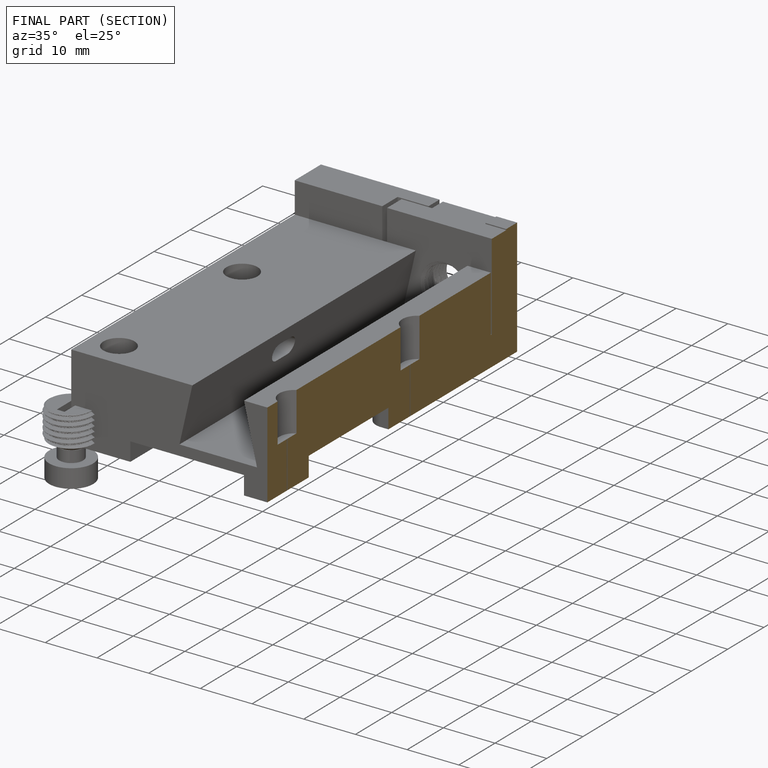
[diagram: finished part — half-section view (interior)]
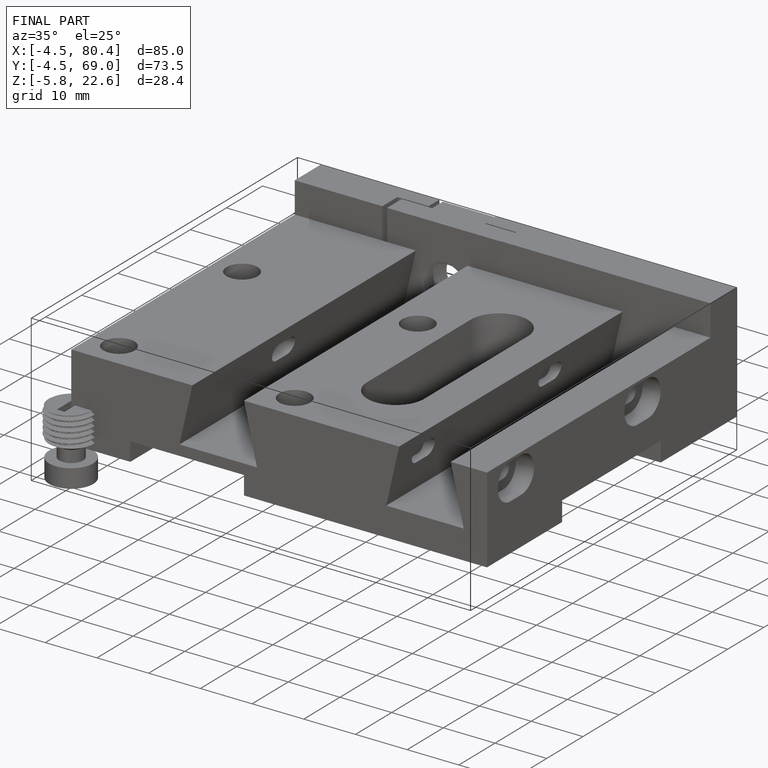
[diagram: finished part — iso view with bounding-box wireframe]
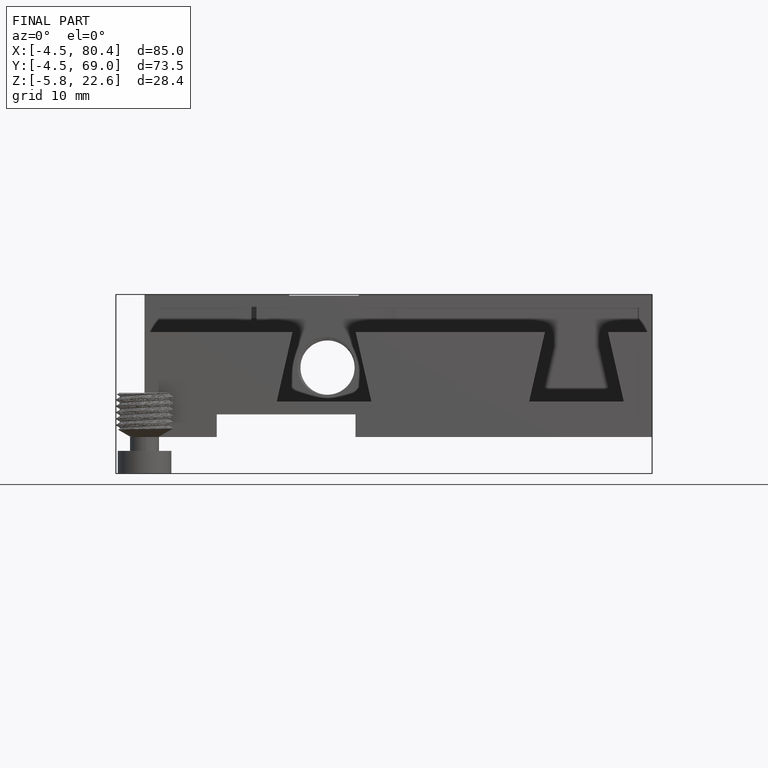
[diagram: finished part — front view with bounding-box wireframe]
